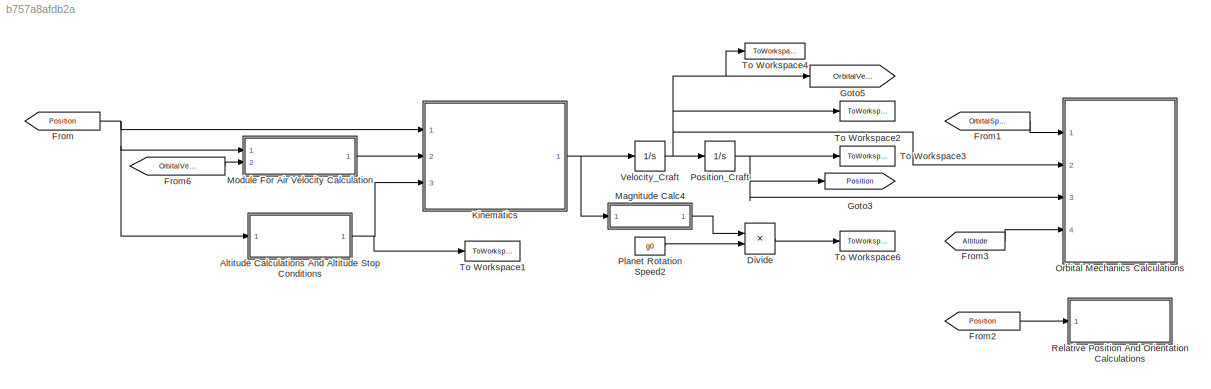
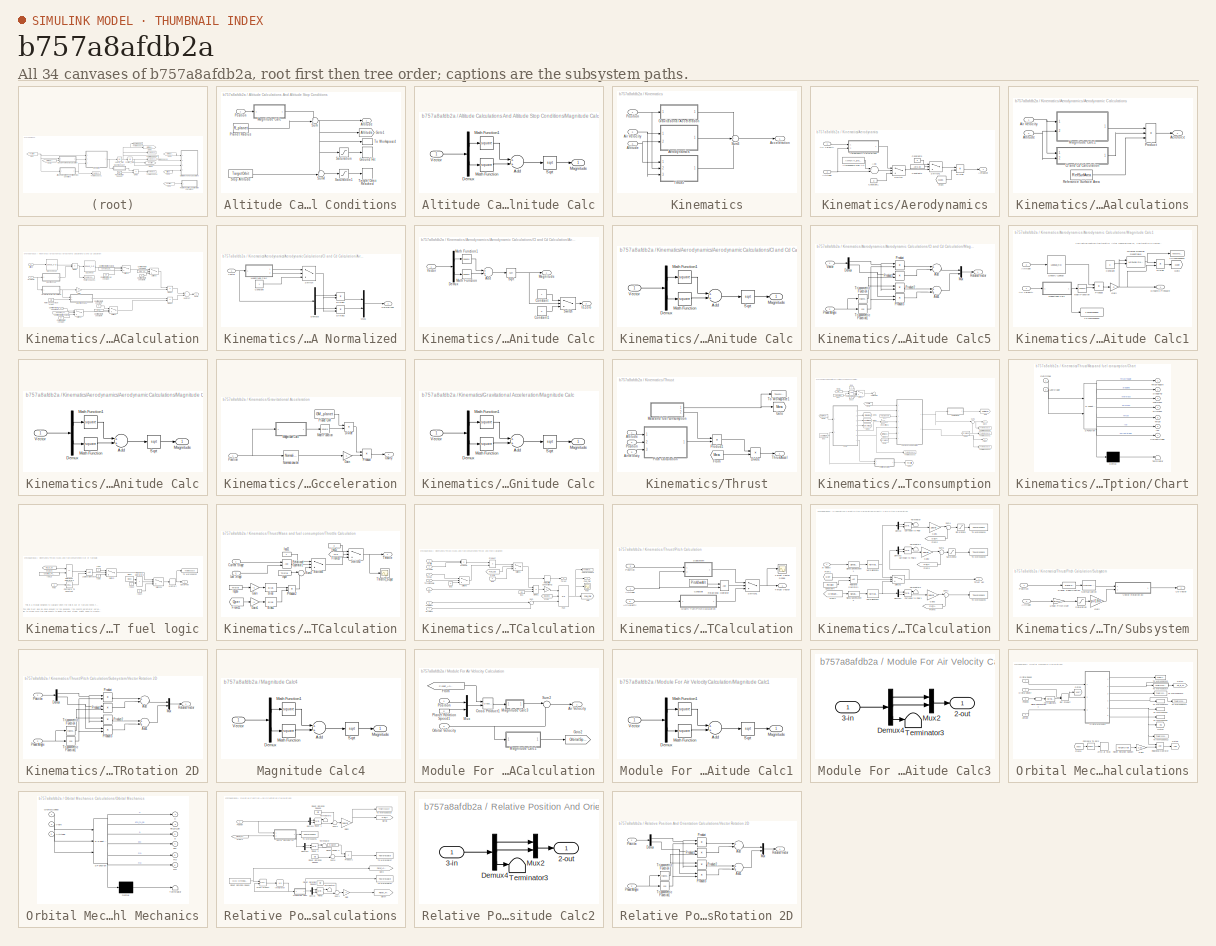
[diagram: thumbnail index - all 34 canvases of the model, root first then tree order]
MODEL slx_b757a8afdb2a
KIND model
CONFIG AbsTol = auto
CONFIG FixedStep = .1
CONFIG InitFcn = PlanetSelect;
CONFIG MaxStep = auto
CONFIG MinStep = auto
CONFIG RelTol = 1e-9
CONFIG SampleTimeConstraint = Unconstrained
CONFIG Solver = ode45
CONFIG SolverMode = Auto
CONFIG SolverName = ode45
CONFIG StartTime = 0.0
CONFIG StopFcn = TotalDeltaV
CONFIG StopTime = 1000
BLOCK [SubSystem] Altitude Calculations And Altitude Stop Conditions
  Ports = [1, 1]
  RequestExecContextInheritance = off
BLOCK [Stop] Altitude Calculations And Altitude Stop Conditions/ Target Orbit Reached
BLOCK [Outport] Altitude Calculations And Altitude Stop Conditions/Altitude
  IconDisplay = Port number
BLOCK [Goto] Altitude Calculations And Altitude Stop Conditions/Goto1
  GotoTag = Altitude
  TagVisibility = global
BLOCK [Stop] Altitude Calculations And Altitude Stop Conditions/Ground Hit
BLOCK [SubSystem] Altitude Calculations And Altitude Stop Conditions/Magnitude Calc
  Ports = [1, 1]
  RequestExecContextInheritance = off
BLOCK [Sum] Altitude Calculations And Altitude Stop Conditions/Magnitude Calc/Add
  InputSameDT = off
  OutDataTypeStr = Inherit: Inherit via internal rule
  Ports = [2, 1]
  SaturateOnIntegerOverflow = off
BLOCK [Demux] Altitude Calculations And Altitude Stop Conditions/Magnitude Calc/Demux
  DisplayOption = bar
  Outputs = 2
  Ports = [1, 2]
BLOCK [Outport] Altitude Calculations And Altitude Stop Conditions/Magnitude Calc/Magnitude 
  IconDisplay = Port number
BLOCK [Math] Altitude Calculations And Altitude Stop Conditions/Magnitude Calc/Math Function
  Operator = square
  Ports = [1, 1]
BLOCK [Math] Altitude Calculations And Altitude Stop Conditions/Magnitude Calc/Math Function1
  Operator = square
  Ports = [1, 1]
BLOCK [Sqrt] Altitude Calculations And Altitude Stop Conditions/Magnitude Calc/Sqrt
BLOCK [Inport] Altitude Calculations And Altitude Stop Conditions/Magnitude Calc/Vector
  IconDisplay = Port number
BLOCK [Constant] Altitude Calculations And Altitude Stop Conditions/Planet Radius 
  Value = R_planet
BLOCK [Inport] Altitude Calculations And Altitude Stop Conditions/Position
  IconDisplay = Port number
BLOCK [Saturate] Altitude Calculations And Altitude Stop Conditions/Saturation
  InputPortMap = u0
  Ports = [1, 1]
  UpperLimit = 0
BLOCK [Saturate] Altitude Calculations And Altitude Stop Conditions/Saturation1
  InputPortMap = u0
  LowerLimit = 0
  Ports = [1, 1]
  UpperLimit = 1
BLOCK [Constant] Altitude Calculations And Altitude Stop Conditions/Stop Altitude
  Value = TargetOrbit
BLOCK [Sum] Altitude Calculations And Altitude Stop Conditions/Sum
  IconShape = round
  InputSameDT = off
  Inputs = +-|
  OutDataTypeStr = Inherit: Inherit via internal rule
  Ports = [2, 1]
  SaturateOnIntegerOverflow = off
BLOCK [Sum] Altitude Calculations And Altitude Stop Conditions/Sum4
  IconShape = round
  InputSameDT = off
  Inputs = +-|
  OutDataTypeStr = Inherit: Inherit via internal rule
  Ports = [2, 1]
  SaturateOnIntegerOverflow = off
BLOCK [ToWorkspace] Altitude Calculations And Altitude Stop Conditions/To Workspace4
  FixptAsFi = on
  MaxDataPoints = inf
  Ports = [1]
  SampleTime = -1
  Save2DSignal = 3-D array (concatenate along third dimension)
  VariableName = Alt
BLOCK [Product] Divide
  InputSameDT = off
  Inputs = */
  OutDataTypeStr = Inherit: Inherit via internal rule
  Ports = [2, 1]
  RndMeth = Floor
  SaturateOnIntegerOverflow = off
BLOCK [From] From
  GotoTag = Position
BLOCK [From] From1
  GotoTag = OrbitalSpeed
  TagVisibility = global
BLOCK [From] From2
  GotoTag = Position
BLOCK [From] From3
  GotoTag = Altitude
  TagVisibility = global
BLOCK [From] From6
  GotoTag = OrbitalVelocity
  TagVisibility = global
BLOCK [Goto] Goto3
  GotoTag = Position
BLOCK [Goto] Goto5
  GotoTag = OrbitalVelocity
  TagVisibility = global
BLOCK [SubSystem] Kinematics
  Ports = [3, 1]
  RequestExecContextInheritance = off
BLOCK [Outport] Kinematics/Acceleration 
  IconDisplay = Port number
BLOCK [SubSystem] Kinematics/Aerodynamics
  Ports = [2, 1]
  RequestExecContextInheritance = off
BLOCK [Sum] Kinematics/Aerodynamics/Add
  InputSameDT = off
  Inputs = +-
  OutDataTypeStr = Inherit: Inherit via internal rule
  Ports = [2, 1]
  SaturateOnIntegerOverflow = off
BLOCK [Outport] Kinematics/Aerodynamics/Aeroaccel 
  IconDisplay = Port number
BLOCK [SubSystem] Kinematics/Aerodynamics/Aerodynamic Calculations
  Ports = [2, 1]
  RequestExecContextInheritance = off
BLOCK [Outport] Kinematics/Aerodynamics/Aerodynamic Calculations/Aeroforce 
  IconDisplay = Port number
BLOCK [Inport] Kinematics/Aerodynamics/Aerodynamic Calculations/Air Velocity
  IconDisplay = Port number
BLOCK [Inport] Kinematics/Aerodynamics/Aerodynamic Calculations/Altitude
  IconDisplay = Port number
  Port = 2
BLOCK [SubSystem] Kinematics/Aerodynamics/Aerodynamic Calculations/Cl and Cd Calculation
  Ports = [2, 1]
  RequestExecContextInheritance = off
BLOCK [Inport] Kinematics/Aerodynamics/Aerodynamic Calculations/Cl and Cd Calculation/Air Velocity
  IconDisplay = Port number
BLOCK [SubSystem] Kinematics/Aerodynamics/Aerodynamic Calculations/Cl and Cd Calculation/Air Velocity Vector Normalized
  Ports = [1, 1]
  RequestExecContextInheritance = off
BLOCK [Constant] Kinematics/Aerodynamics/Aerodynamic Calculations/Cl and Cd Calculation/Air Velocity Vector Normalized/Constant
BLOCK [Demux] Kinematics/Aerodynamics/Aerodynamic Calculations/Cl and Cd Calculation/Air Velocity Vector Normalized/Demux3
  DisplayOption = bar
  Outputs = 2
  Ports = [1, 2]
BLOCK [Product] Kinematics/Aerodynamics/Aerodynamic Calculations/Cl and Cd Calculation/Air Velocity Vector Normalized/Divide1
  InputSameDT = off
  Inputs = */
  OutDataTypeStr = Inherit: Inherit via internal rule
  Ports = [2, 1]
  RndMeth = Floor
  SaturateOnIntegerOverflow = off
BLOCK [Product] Kinematics/Aerodynamics/Aerodynamic Calculations/Cl and Cd Calculation/Air Velocity Vector Normalized/Divide2
  InputSameDT = off
  Inputs = */
  OutDataTypeStr = Inherit: Inherit via internal rule
  Ports = [2, 1]
  RndMeth = Floor
  SaturateOnIntegerOverflow = off
BLOCK [SubSystem] Kinematics/Aerodynamics/Aerodynamic Calculations/Cl and Cd Calculation/Air Velocity Vector Normalized/Magnitude Calc
  Ports = [1, 2]
  RequestExecContextInheritance = off
BLOCK [Sum] Kinematics/Aerodynamics/Aerodynamic Calculations/Cl and Cd Calculation/Air Velocity Vector Normalized/Magnitude Calc/Add
  InputSameDT = off
  OutDataTypeStr = Inherit: Inherit via internal rule
  Ports = [2, 1]
  SaturateOnIntegerOverflow = off
BLOCK [Constant] Kinematics/Aerodynamics/Aerodynamic Calculations/Cl and Cd Calculation/Air Velocity Vector Normalized/Magnitude Calc/Constant
BLOCK [Constant] Kinematics/Aerodynamics/Aerodynamic Calculations/Cl and Cd Calculation/Air Velocity Vector Normalized/Magnitude Calc/Constant1
  Value = 0
BLOCK [Demux] Kinematics/Aerodynamics/Aerodynamic Calculations/Cl and Cd Calculation/Air Velocity Vector Normalized/Magnitude Calc/Demux
  DisplayOption = bar
  Outputs = 2
  Ports = [1, 2]
BLOCK [Outport] Kinematics/Aerodynamics/Aerodynamic Calculations/Cl and Cd Calculation/Air Velocity Vector Normalized/Magnitude Calc/Is Zero
  IconDisplay = Port number
  Port = 2
BLOCK [Outport] Kinematics/Aerodynamics/Aerodynamic Calculations/Cl and Cd Calculation/Air Velocity Vector Normalized/Magnitude Calc/Magnitude 
  IconDisplay = Port number
BLOCK [Math] Kinematics/Aerodynamics/Aerodynamic Calculations/Cl and Cd Calculation/Air Velocity Vector Normalized/Magnitude Calc/Math Function
  Operator = square
  Ports = [1, 1]
BLOCK [Math] Kinematics/Aerodynamics/Aerodynamic Calculations/Cl and Cd Calculation/Air Velocity Vector Normalized/Magnitude Calc/Math Function1
  Operator = square
  Ports = [1, 1]
BLOCK [Sqrt] Kinematics/Aerodynamics/Aerodynamic Calculations/Cl and Cd Calculation/Air Velocity Vector Normalized/Magnitude Calc/Sqrt
BLOCK [Switch] Kinematics/Aerodynamics/Aerodynamic Calculations/Cl and Cd Calculation/Air Velocity Vector Normalized/Magnitude Calc/Switch
  Criteria = u2 ~= 0
  InputSameDT = off
  SaturateOnIntegerOverflow = off
BLOCK [Inport] Kinematics/Aerodynamics/Aerodynamic Calculations/Cl and Cd Calculation/Air Velocity Vector Normalized/Magnitude Calc/Vector
  IconDisplay = Port number
BLOCK [Mux] Kinematics/Aerodynamics/Aerodynamic Calculations/Cl and Cd Calculation/Air Velocity Vector Normalized/Mux1
  DisplayOption = bar
  Inputs = 2
  Ports = [2, 1]
BLOCK [Outport] Kinematics/Aerodynamics/Aerodynamic Calculations/Cl and Cd Calculation/Air Velocity Vector Normalized/Normalized 
  IconDisplay = Port number
BLOCK [Switch] Kinematics/Aerodynamics/Aerodynamic Calculations/Cl and Cd Calculation/Air Velocity Vector Normalized/Switch
  Criteria = u2 > Threshold
  InputSameDT = off
  SaturateOnIntegerOverflow = off
BLOCK [Inport] Kinematics/Aerodynamics/Aerodynamic Calculations/Cl and Cd Calculation/Air Velocity Vector Normalized/Vector
  IconDisplay = Port number
BLOCK [Inport] Kinematics/Aerodynamics/Aerodynamic Calculations/Cl and Cd Calculation/Altitude 
  IconDisplay = Port number
  Port = 2
BLOCK [Lookup_n-D] Kinematics/Aerodynamics/Aerodynamic Calculations/Cl and Cd Calculation/Cd Lookup
  BreakpointsForDimension1 = DragData(:,1)
  InternalRulePriority = Speed
  NumberOfTableDimensions = 1
  Ports = [1, 1]
  RndMeth = Simplest
  Table = DragData(:,2)
BLOCK [Outport] Kinematics/Aerodynamics/Aerodynamic Calculations/Cl and Cd Calculation/Cl + Cd
  IconDisplay = Port number
BLOCK [Constant] Kinematics/Aerodynamics/Aerodynamic Calculations/Cl and Cd Calculation/Coefficient of Drag constant
  Value = Cd
BLOCK [Constant] Kinematics/Aerodynamics/Aerodynamic Calculations/Cl and Cd Calculation/Coefficient of Lift constant
  Value = Cl
BLOCK [Constant] Kinematics/Aerodynamics/Aerodynamic Calculations/Cl and Cd Calculation/Coefficient of Lift constant1
  Value = 0
BLOCK [Constant] Kinematics/Aerodynamics/Aerodynamic Calculations/Cl and Cd Calculation/Coefficient of Lift constant2
  Value = Constant_Drag_On
BLOCK [Constant] Kinematics/Aerodynamics/Aerodynamic Calculations/Cl and Cd Calculation/Coefficient of Lift constant3
  Value = Drag_On
BLOCK [Constant] Kinematics/Aerodynamics/Aerodynamic Calculations/Cl and Cd Calculation/Coefficient of Lift constant4
  Value = Lift_On
BLOCK [Constant] Kinematics/Aerodynamics/Aerodynamic Calculations/Cl and Cd Calculation/Coefficient of Lift constant5
  Value = Constant_Lift_On
BLOCK [Constant] Kinematics/Aerodynamics/Aerodynamic Calculations/Cl and Cd Calculation/Coefficient of Lift constant6
  Value = 0
BLOCK [Constant] Kinematics/Aerodynamics/Aerodynamic Calculations/Cl and Cd Calculation/Coefficient of Lift constant7
  Value = 0
BLOCK [Product] Kinematics/Aerodynamics/Aerodynamic Calculations/Cl and Cd Calculation/Divide
  InputSameDT = off
  Inputs = /*
  OutDataTypeStr = Inherit: Inherit via internal rule
  Ports = [2, 1]
  RndMeth = Floor
  SaturateOnIntegerOverflow = off
BLOCK [Product] Kinematics/Aerodynamics/Aerodynamic Calculations/Cl and Cd Calculation/Divide1
  InputSameDT = off
  Inputs = **
  OutDataTypeStr = Inherit: Inherit via internal rule
  Ports = [2, 1]
  RndMeth = Floor
  SaturateOnIntegerOverflow = off
BLOCK [Product] Kinematics/Aerodynamics/Aerodynamic Calculations/Cl and Cd Calculation/Divide2
  InputSameDT = off
  Inputs = **
  OutDataTypeStr = Inherit: Inherit via internal rule
  Ports = [2, 1]
  RndMeth = Floor
  SaturateOnIntegerOverflow = off
BLOCK [Gain] Kinematics/Aerodynamics/Aerodynamic Calculations/Cl and Cd Calculation/Gain
  Gain = -1
  OutDataTypeStr = Inherit: Inherit via internal rule
  ParamDataTypeStr = Inherit: Inherit via internal rule
  SaturateOnIntegerOverflow = off
BLOCK [Lookup_n-D] Kinematics/Aerodynamics/Aerodynamic Calculations/Cl and Cd Calculation/Mach Lookup
  BreakpointsForDimension1 = AtmoData(:,1)
  InternalRulePriority = Speed
  NumberOfTableDimensions = 1
  Ports = [1, 1]
  RndMeth = Simplest
  Table = AtmoData(:,4)
BLOCK [SubSystem] Kinematics/Aerodynamics/Aerodynamic Calculations/Cl and Cd Calculation/Magnitude Calc
  Ports = [1, 1]
  RequestExecContextInheritance = off
BLOCK [Sum] Kinematics/Aerodynamics/Aerodynamic Calculations/Cl and Cd Calculation/Magnitude Calc/Add
  InputSameDT = off
  OutDataTypeStr = Inherit: Inherit via internal rule
  Ports = [2, 1]
  SaturateOnIntegerOverflow = off
BLOCK [Demux] Kinematics/Aerodynamics/Aerodynamic Calculations/Cl and Cd Calculation/Magnitude Calc/Demux
  DisplayOption = bar
  Outputs = 2
  Ports = [1, 2]
BLOCK [Outport] Kinematics/Aerodynamics/Aerodynamic Calculations/Cl and Cd Calculation/Magnitude Calc/Magnitude 
  IconDisplay = Port number
BLOCK [Math] Kinematics/Aerodynamics/Aerodynamic Calculations/Cl and Cd Calculation/Magnitude Calc/Math Function
  Operator = square
  Ports = [1, 1]
BLOCK [Math] Kinematics/Aerodynamics/Aerodynamic Calculations/Cl and Cd Calculation/Magnitude Calc/Math Function1
  Operator = square
  Ports = [1, 1]
BLOCK [Sqrt] Kinematics/Aerodynamics/Aerodynamic Calculations/Cl and Cd Calculation/Magnitude Calc/Sqrt
BLOCK [Inport] Kinematics/Aerodynamics/Aerodynamic Calculations/Cl and Cd Calculation/Magnitude Calc/Vector
  IconDisplay = Port number
BLOCK [SubSystem] Kinematics/Aerodynamics/Aerodynamic Calculations/Cl and Cd Calculation/Magnitude Calc5
  Ports = [2, 1]
  RequestExecContextInheritance = off
BLOCK [Sum] Kinematics/Aerodynamics/Aerodynamic Calculations/Cl and Cd Calculation/Magnitude Calc5/Add
  InputSameDT = off
  Inputs = +-
  OutDataTypeStr = Inherit: Inherit via internal rule
  Ports = [2, 1]
  SaturateOnIntegerOverflow = off
BLOCK [Sum] Kinematics/Aerodynamics/Aerodynamic Calculations/Cl and Cd Calculation/Magnitude Calc5/Add1
  InputSameDT = off
  OutDataTypeStr = Inherit: Inherit via internal rule
  Ports = [2, 1]
  SaturateOnIntegerOverflow = off
BLOCK [Demux] Kinematics/Aerodynamics/Aerodynamic Calculations/Cl and Cd Calculation/Magnitude Calc5/Demux
  DisplayOption = bar
  Outputs = 2
  Ports = [1, 2]
BLOCK [Mux] Kinematics/Aerodynamics/Aerodynamic Calculations/Cl and Cd Calculation/Magnitude Calc5/Mux
  DisplayOption = bar
  Inputs = 2
  Ports = [2, 1]
BLOCK [Inport] Kinematics/Aerodynamics/Aerodynamic Calculations/Cl and Cd Calculation/Magnitude Calc5/Phase Angle
  IconDisplay = Port number
  Port = 2
BLOCK [Product] Kinematics/Aerodynamics/Aerodynamic Calculations/Cl and Cd Calculation/Magnitude Calc5/Product
  InputSameDT = off
  OutDataTypeStr = Inherit: Inherit via internal rule
  Ports = [2, 1]
  RndMeth = Floor
  SaturateOnIntegerOverflow = off
BLOCK [Product] Kinematics/Aerodynamics/Aerodynamic Calculations/Cl and Cd Calculation/Magnitude Calc5/Product1
  InputSameDT = off
  OutDataTypeStr = Inherit: Inherit via internal rule
  Ports = [2, 1]
  RndMeth = Floor
  SaturateOnIntegerOverflow = off
BLOCK [Product] Kinematics/Aerodynamics/Aerodynamic Calculations/Cl and Cd Calculation/Magnitude Calc5/Product2
  InputSameDT = off
  OutDataTypeStr = Inherit: Inherit via internal rule
  Ports = [2, 1]
  RndMeth = Floor
  SaturateOnIntegerOverflow = off
BLOCK [Product] Kinematics/Aerodynamics/Aerodynamic Calculations/Cl and Cd Calculation/Magnitude Calc5/Product3
  InputSameDT = off
  OutDataTypeStr = Inherit: Inherit via internal rule
  Ports = [2, 1]
  RndMeth = Floor
  SaturateOnIntegerOverflow = off
BLOCK [Outport] Kinematics/Aerodynamics/Aerodynamic Calculations/Cl and Cd Calculation/Magnitude Calc5/Rotated Vector 
  IconDisplay = Port number
BLOCK [Trigonometry] Kinematics/Aerodynamics/Aerodynamic Calculations/Cl and Cd Calculation/Magnitude Calc5/Trigonometric Function
  Ports = [1, 1]
BLOCK [Trigonometry] Kinematics/Aerodynamics/Aerodynamic Calculations/Cl and Cd Calculation/Magnitude Calc5/Trigonometric Function1
  Operator = cos
  Ports = [1, 1]
BLOCK [Inport] Kinematics/Aerodynamics/Aerodynamic Calculations/Cl and Cd Calculation/Magnitude Calc5/Vector
  IconDisplay = Port number
BLOCK [Constant] Kinematics/Aerodynamics/Aerodynamic Calculations/Cl and Cd Calculation/Referance Surface Area1
  Value = pi/2
BLOCK [Sum] Kinematics/Aerodynamics/Aerodynamic Calculations/Cl and Cd Calculation/Subtract
  InputSameDT = off
  OutDataTypeStr = Inherit: Inherit via internal rule
  Ports = [2, 1]
  SaturateOnIntegerOverflow = off
BLOCK [Switch] Kinematics/Aerodynamics/Aerodynamic Calculations/Cl and Cd Calculation/Switch1
  Criteria = u2 ~= 0
  InputSameDT = off
  SaturateOnIntegerOverflow = off
BLOCK [Switch] Kinematics/Aerodynamics/Aerodynamic Calculations/Cl and Cd Calculation/Switch2
  Criteria = u2 ~= 0
  InputSameDT = off
  SaturateOnIntegerOverflow = off
BLOCK [Switch] Kinematics/Aerodynamics/Aerodynamic Calculations/Cl and Cd Calculation/Switch3
  Criteria = u2 ~= 0
  InputSameDT = off
  SaturateOnIntegerOverflow = off
BLOCK [Switch] Kinematics/Aerodynamics/Aerodynamic Calculations/Cl and Cd Calculation/Switch4
  Criteria = u2 ~= 0
  InputSameDT = off
  SaturateOnIntegerOverflow = off
BLOCK [ToWorkspace] Kinematics/Aerodynamics/Aerodynamic Calculations/Cl and Cd Calculation/To Workspace1
  FixptAsFi = on
  MaxDataPoints = inf
  Ports = [1]
  SampleTime = -1
  Save2DSignal = 3-D array (concatenate along third dimension)
  VariableName = Mach
BLOCK [SubSystem] Kinematics/Aerodynamics/Aerodynamic Calculations/Magnitude Calc1
  Ports = [2, 1]
  RequestExecContextInheritance = off
BLOCK [Inport] Kinematics/Aerodynamics/Aerodynamic Calculations/Magnitude Calc1/Air Velocity
  IconDisplay = Port number
BLOCK [Inport] Kinematics/Aerodynamics/Aerodynamic Calculations/Magnitude Calc1/Altitude 
  IconDisplay = Port number
  Port = 2
BLOCK [Constant] Kinematics/Aerodynamics/Aerodynamic Calculations/Magnitude Calc1/Constant
  Value = 0
BLOCK [Lookup_n-D] Kinematics/Aerodynamics/Aerodynamic Calculations/Magnitude Calc1/Density Lookup
  BreakpointsForDimension1 = AtmoData(:,1)
  InternalRulePriority = Speed
  NumberOfTableDimensions = 1
  Ports = [1, 1]
  RndMeth = Simplest
  Table = AtmoData(:,3)
BLOCK [Product] Kinematics/Aerodynamics/Aerodynamic Calculations/Magnitude Calc1/Divide
  InputSameDT = off
  Inputs = /*
  OutDataTypeStr = Inherit: Inherit via internal rule
  Ports = [2, 1]
  RndMeth = Floor
  SaturateOnIntegerOverflow = off
BLOCK [Outport] Kinematics/Aerodynamics/Aerodynamic Calculations/Magnitude Calc1/Dynamic Pressure 
  IconDisplay = Port number
BLOCK [Gain] Kinematics/Aerodynamics/Aerodynamic Calculations/Magnitude Calc1/Gain
  Gain = .5
  OutDataTypeStr = Inherit: Inherit via internal rule
  ParamDataTypeStr = Inherit: Inherit via internal rule
  SaturateOnIntegerOverflow = off
BLOCK [Goto] Kinematics/Aerodynamics/Aerodynamic Calculations/Magnitude Calc1/Goto
  GotoTag = Qper
  TagVisibility = global
BLOCK [SubSystem] Kinematics/Aerodynamics/Aerodynamic Calculations/Magnitude Calc1/Magnitude Calc
  Ports = [1, 1]
  RequestExecContextInheritance = off
BLOCK [Sum] Kinematics/Aerodynamics/Aerodynamic Calculations/Magnitude Calc1/Magnitude Calc/Add
  InputSameDT = off
  OutDataTypeStr = Inherit: Inherit via internal rule
  Ports = [2, 1]
  SaturateOnIntegerOverflow = off
BLOCK [Demux] Kinematics/Aerodynamics/Aerodynamic Calculations/Magnitude Calc1/Magnitude Calc/Demux
  DisplayOption = bar
  Outputs = 2
  Ports = [1, 2]
BLOCK [Outport] Kinematics/Aerodynamics/Aerodynamic Calculations/Magnitude Calc1/Magnitude Calc/Magnitude 
  IconDisplay = Port number
BLOCK [Math] Kinematics/Aerodynamics/Aerodynamic Calculations/Magnitude Calc1/Magnitude Calc/Math Function
  Operator = square
  Ports = [1, 1]
BLOCK [Math] Kinematics/Aerodynamics/Aerodynamic Calculations/Magnitude Calc1/Magnitude Calc/Math Function1
  Operator = square
  Ports = [1, 1]
BLOCK [Sqrt] Kinematics/Aerodynamics/Aerodynamic Calculations/Magnitude Calc1/Magnitude Calc/Sqrt
BLOCK [Inport] Kinematics/Aerodynamics/Aerodynamic Calculations/Magnitude Calc1/Magnitude Calc/Vector
  IconDisplay = Port number
BLOCK [Math] Kinematics/Aerodynamics/Aerodynamic Calculations/Magnitude Calc1/Math Function
  Operator = square
  Ports = [1, 1]
BLOCK [Reference] Kinematics/Aerodynamics/Aerodynamic Calculations/Magnitude Calc1/MinMax Running Resettable  REF=simulink/Math
Operations/MinMax
Running
Resettable
  Function = max
  Ports = [2, 1]
  SourceBlock = simulink/Math\nOperations/MinMax\nRunning\nResettable
  SourceType = MinMax Running Resettable
  vinit = 0.0
BLOCK [Product] Kinematics/Aerodynamics/Aerodynamic Calculations/Magnitude Calc1/Product
  InputSameDT = off
  OutDataTypeStr = Inherit: Inherit via internal rule
  Ports = [2, 1]
  RndMeth = Floor
  SaturateOnIntegerOverflow = off
BLOCK [ToWorkspace] Kinematics/Aerodynamics/Aerodynamic Calculations/Magnitude Calc1/To Workspace1
  FixptAsFi = on
  MaxDataPoints = 1
  Ports = [1]
  SampleTime = -1
  Save2DSignal = 3-D array (concatenate along third dimension)
  VariableName = MaxQ
BLOCK [ToWorkspace] Kinematics/Aerodynamics/Aerodynamic Calculations/Magnitude Calc1/To Workspace2
  FixptAsFi = on
  MaxDataPoints = inf
  Ports = [1]
  SampleTime = -1
  Save2DSignal = 3-D array (concatenate along third dimension)
  VariableName = Airspeed
BLOCK [Product] Kinematics/Aerodynamics/Aerodynamic Calculations/Product
  InputSameDT = off
  Inputs = 3
  OutDataTypeStr = Inherit: Inherit via internal rule
  Ports = [3, 1]
  RndMeth = Floor
  SaturateOnIntegerOverflow = off
BLOCK [Constant] Kinematics/Aerodynamics/Aerodynamic Calculations/Referance Surface Area
  Value = RefSurfArea
BLOCK [Inport] Kinematics/Aerodynamics/Air Velocity
  IconDisplay = Port number
BLOCK [Inport] Kinematics/Aerodynamics/Altitude 
  IconDisplay = Port number
  Port = 2
BLOCK [Constant] Kinematics/Aerodynamics/Atmosphere Max Alt
  Value = AtmoAlt_planet
BLOCK [Constant] Kinematics/Aerodynamics/Constant1
  Value = 0
BLOCK [Constant] Kinematics/Aerodynamics/Constant2
  Value = Aero_On
BLOCK [Constant] Kinematics/Aerodynamics/Constant3
  Value = 0
BLOCK [Product] Kinematics/Aerodynamics/Divide
  InputSameDT = off
  Inputs = */
  OutDataTypeStr = Inherit: Inherit via internal rule
  Ports = [2, 1]
  RndMeth = Floor
  SaturateOnIntegerOverflow = off
BLOCK [From] Kinematics/Aerodynamics/From
  GotoTag = Mass
  TagVisibility = global
BLOCK [Switch] Kinematics/Aerodynamics/Switch
  Criteria = u2 > Threshold
  InputSameDT = off
  SaturateOnIntegerOverflow = off
BLOCK [Switch] Kinematics/Aerodynamics/Switch1
  Criteria = u2 ~= 0
  InputSameDT = off
  SaturateOnIntegerOverflow = off
BLOCK [Inport] Kinematics/Air Velocity
  IconDisplay = Port number
  Port = 2
BLOCK [Inport] Kinematics/Altitude 
  IconDisplay = Port number
  Port = 3
BLOCK [SubSystem] Kinematics/Gravitational Acceleration
  Ports = [1, 1]
  RequestExecContextInheritance = off
BLOCK [Product] Kinematics/Gravitational Acceleration/Divide
  InputSameDT = off
  Inputs = */
  OutDataTypeStr = Inherit: Inherit via internal rule
  Ports = [2, 1]
  RndMeth = Floor
  SaturateOnIntegerOverflow = off
BLOCK [Gain] Kinematics/Gravitational Acceleration/Gain
  Gain = -1
  OutDataTypeStr = Inherit: Inherit via internal rule
  ParamDataTypeStr = Inherit: Inherit via internal rule
  SaturateOnIntegerOverflow = off
BLOCK [Outport] Kinematics/Gravitational Acceleration/Gavity 
  IconDisplay = Port number
BLOCK [SubSystem] Kinematics/Gravitational Acceleration/Magnitude Calc
  Ports = [1, 1]
  RequestExecContextInheritance = off
BLOCK [Sum] Kinematics/Gravitational Acceleration/Magnitude Calc/Add
  InputSameDT = off
  OutDataTypeStr = Inherit: Inherit via internal rule
  Ports = [2, 1]
  SaturateOnIntegerOverflow = off
BLOCK [Demux] Kinematics/Gravitational Acceleration/Magnitude Calc/Demux
  DisplayOption = bar
  Outputs = 2
  Ports = [1, 2]
BLOCK [Outport] Kinematics/Gravitational Acceleration/Magnitude Calc/Magnitude 
  IconDisplay = Port number
BLOCK [Math] Kinematics/Gravitational Acceleration/Magnitude Calc/Math Function
  Operator = square
  Ports = [1, 1]
BLOCK [Math] Kinematics/Gravitational Acceleration/Magnitude Calc/Math Function1
  Operator = square
  Ports = [1, 1]
BLOCK [Sqrt] Kinematics/Gravitational Acceleration/Magnitude Calc/Sqrt
BLOCK [Inport] Kinematics/Gravitational Acceleration/Magnitude Calc/Vector
  IconDisplay = Port number
BLOCK [Math] Kinematics/Gravitational Acceleration/Math Function
  Operator = square
  Ports = [1, 1]
BLOCK [Reference] Kinematics/Gravitational Acceleration/Normalization  REF=dspmathops/Normalization
  Bias = 1e-10
  ColComp = off
  Dimension = 1
  LockScale = off
  NormOver = Specified dimension
  NormType = 2-norm
  Ports = [1, 1]
  SourceBlock = dspmathops/Normalization
  SourceType = Normalization
  accumDataTypeStr = Inherit: Same as product output
  accumFracLength = 30
  accumLastDataTypeStr = Inherit: Same as product output
  accumMode = Same as product output
  accumWordLength = 32
  additionalParams = off
  allowOverrides = on
  outputDataTypeStr = Inherit: Same as product output
  outputFracLength = 32
  outputLastDataTypeStr = Inherit: Same as product output
  outputMax = []
  outputMin = []
  outputMode = Same as product output
  outputWordLength = 32
  overflowMode = off
  prodOutputDataTypeStr = Inherit: Same as input
  prodOutputFracLength = 32
  prodOutputLastDataTypeStr = Inherit: Same as input
  prodOutputMode = Same as input
  prodOutputWordLength = 32
  roundingMode = Floor
BLOCK [Constant] Kinematics/Gravitational Acceleration/Planet GM
  Value = GM_planet
BLOCK [Inport] Kinematics/Gravitational Acceleration/Position
  IconDisplay = Port number
BLOCK [Product] Kinematics/Gravitational Acceleration/Product
  InputSameDT = off
  OutDataTypeStr = Inherit: Inherit via internal rule
  Ports = [2, 1]
  RndMeth = Floor
  SaturateOnIntegerOverflow = off
BLOCK [Inport] Kinematics/Position
  IconDisplay = Port number
BLOCK [Sum] Kinematics/Sum3
  IconShape = round
  InputSameDT = off
  Inputs = +++
  OutDataTypeStr = Inherit: Inherit via internal rule
  Ports = [3, 1]
  SaturateOnIntegerOverflow = off
BLOCK [SubSystem] Kinematics/Thrust
  Ports = [3, 1]
  RequestExecContextInheritance = off
BLOCK [Inport] Kinematics/Thrust/AirVelocity
  IconDisplay = Port number
  Port = 3
BLOCK [Inport] Kinematics/Thrust/Altitude
  IconDisplay = Port number
BLOCK [Product] Kinematics/Thrust/Divide
  InputSameDT = off
  Inputs = */
  OutDataTypeStr = Inherit: Inherit via internal rule
  Ports = [2, 1]
  RndMeth = Floor
  SaturateOnIntegerOverflow = off
BLOCK [From] Kinematics/Thrust/From
  GotoTag = Mass
  TagVisibility = global
BLOCK [Goto] Kinematics/Thrust/Goto
  GotoTag = Mass
  TagVisibility = global
BLOCK [SubSystem] Kinematics/Thrust/Mass and fuel consumption
  Ports = [0, 2]
  RequestExecContextInheritance = off
BLOCK [SubSystem] Kinematics/Thrust/Mass and fuel consumption/Chart
  ErrorFcn = Stateflow.Translate.translate
  PermitHierarchicalResolution = ExplicitOnly
  Ports = [2, 7]
  RequestExecContextInheritance = off
  SFBlockType = Chart
  TreatAsAtomicUnit = on
BLOCK [Demux] Kinematics/Thrust/Mass and fuel consumption/Chart/ Demux 
  Outputs = 1
  Ports = [1, 1]
BLOCK [S-Function] Kinematics/Thrust/Mass and fuel consumption/Chart/ SFunction 
  EnableBusSupport = on
  FunctionName = sf_sfun
  Parameters = ThrustMassData
  PortCounts = [2 8]
  Ports = [2, 8]
  Tag = Stateflow S-Function NewOrbitSimulation 3
BLOCK [Terminator] Kinematics/Thrust/Mass and fuel consumption/Chart/ Terminator 
BLOCK [Outport] Kinematics/Thrust/Mass and fuel consumption/Chart/CurrentStage
  IconDisplay = Port number
  Port = 7
BLOCK [Outport] Kinematics/Thrust/Mass and fuel consumption/Chart/DryMass
  IconDisplay = Port number
  Port = 4
BLOCK [Outport] Kinematics/Thrust/Mass and fuel consumption/Chart/Isp
  IconDisplay = Port number
  Port = 6
BLOCK [Inport] Kinematics/Thrust/Mass and fuel consumption/Chart/LastStage
  IconDisplay = Port number
  Port = 2
BLOCK [Inport] Kinematics/Thrust/Mass and fuel consumption/Chart/OutOfFuel
  IconDisplay = Port number
BLOCK [Outport] Kinematics/Thrust/Mass and fuel consumption/Chart/Stagging
  IconDisplay = Port number
  Port = 2
BLOCK [Outport] Kinematics/Thrust/Mass and fuel consumption/Chart/Thrust
  IconDisplay = Port number
  Port = 5
BLOCK [Outport] Kinematics/Thrust/Mass and fuel consumption/Chart/ThrustToggle
  IconDisplay = Port number
BLOCK [Outport] Kinematics/Thrust/Mass and fuel consumption/Chart/WetMass
  IconDisplay = Port number
  Port = 3
BLOCK [Gain] Kinematics/Thrust/Mass and fuel consumption/Convert to kN
  Gain = 1000
  OutDataTypeStr = Inherit: Inherit via internal rule
  ParamDataTypeStr = Inherit: Inherit via internal rule
  SaturateOnIntegerOverflow = off
BLOCK [From] Kinematics/Thrust/Mass and fuel consumption/From
  GotoTag = WetMass
BLOCK [From] Kinematics/Thrust/Mass and fuel consumption/From1
  GotoTag = DryMass
BLOCK [From] Kinematics/Thrust/Mass and fuel consumption/From3
  GotoTag = OutOfFuel
BLOCK [From] Kinematics/Thrust/Mass and fuel consumption/From4
  GotoTag = DryMass
BLOCK [From] Kinematics/Thrust/Mass and fuel consumption/From6
  GotoTag = Ra
  TagVisibility = global
BLOCK [From] Kinematics/Thrust/Mass and fuel consumption/From8
  GotoTag = Throttle
BLOCK [Goto] Kinematics/Thrust/Mass and fuel consumption/Goto
  GotoTag = OutOfFuel
BLOCK [Goto] Kinematics/Thrust/Mass and fuel consumption/Goto1
  GotoTag = WetMass
BLOCK [Goto] Kinematics/Thrust/Mass and fuel consumption/Goto2
  GotoTag = DryMass
BLOCK [Goto] Kinematics/Thrust/Mass and fuel consumption/Goto5
  GotoTag = Stagging
  TagVisibility = global
BLOCK [Goto] Kinematics/Thrust/Mass and fuel consumption/Goto6
  GotoTag = Throttle
BLOCK [Constant] Kinematics/Thrust/Mass and fuel consumption/Isp10
BLOCK [Constant] Kinematics/Thrust/Mass and fuel consumption/Isp17
  Value = ThrustEnable
BLOCK [Constant] Kinematics/Thrust/Mass and fuel consumption/Isp3
  Value = LastStage
BLOCK [Constant] Kinematics/Thrust/Mass and fuel consumption/Isp7
  Value = TargetOrbit/2
BLOCK [Constant] Kinematics/Thrust/Mass and fuel consumption/Isp8
BLOCK [Outport] Kinematics/Thrust/Mass and fuel consumption/Mass 
  IconDisplay = Port number
BLOCK [SubSystem] Kinematics/Thrust/Mass and fuel consumption/Out of fuel logic
  Ports = [1, 1]
  RequestExecContextInheritance = off
BLOCK [Clock] Kinematics/Thrust/Mass and fuel consumption/Out of fuel logic/Clock
  DisplayTime = on
BLOCK [Reference] Kinematics/Thrust/Mass and fuel consumption/Out of fuel logic/Compare To Constant  REF=simulink/Logic and Bit
Operations/Compare
To Constant
  OutDataTypeStr = boolean
  Ports = [1, 1]
  SourceBlock = simulink/Logic and Bit\nOperations/Compare\nTo Constant
  SourceType = Compare To Constant
  ZeroCross = on
  const = 1
  relop = <=
BLOCK [From] Kinematics/Thrust/Mass and fuel consumption/Out of fuel logic/From9
  GotoTag = eta_to_ap
  TagVisibility = global
BLOCK [Inport] Kinematics/Thrust/Mass and fuel consumption/Out of fuel logic/Fuel
  IconDisplay = Port number
BLOCK [Constant] Kinematics/Thrust/Mass and fuel consumption/Out of fuel logic/Isp12
BLOCK [Constant] Kinematics/Thrust/Mass and fuel consumption/Out of fuel logic/Isp13
  Value = Coasting_Parameter
BLOCK [Constant] Kinematics/Thrust/Mass and fuel consumption/Out of fuel logic/Isp14
  Value = 0
BLOCK [Constant] Kinematics/Thrust/Mass and fuel consumption/Out of fuel logic/Isp4
BLOCK [Constant] Kinematics/Thrust/Mass and fuel consumption/Out of fuel logic/Isp5
  Value = 0
BLOCK [Logic] Kinematics/Thrust/Mass and fuel consumption/Out of fuel logic/Logical Operator
  AllPortsSameDT = off
  OutDataTypeStr = boolean
  Ports = [2, 1]
BLOCK [Memory] Kinematics/Thrust/Mass and fuel consumption/Out of fuel logic/Memory
BLOCK [Outport] Kinematics/Thrust/Mass and fuel consumption/Out of fuel logic/OutOfFuel
  IconDisplay = Port number
BLOCK [RelationalOperator] Kinematics/Thrust/Mass and fuel consumption/Out of fuel logic/Relational Operator2
  InputSameDT = off
  Operator = >
  OutDataTypeStr = boolean
  Ports = [2, 1]
BLOCK [RelationalOperator] Kinematics/Thrust/Mass and fuel consumption/Out of fuel logic/Relational Operator3
  InputSameDT = off
  Operator = <=
  OutDataTypeStr = boolean
  Ports = [2, 1]
BLOCK [Switch] Kinematics/Thrust/Mass and fuel consumption/Out of fuel logic/Switch
  Criteria = u2 ~= 0
  InputSameDT = off
  SaturateOnIntegerOverflow = off
BLOCK [Switch] Kinematics/Thrust/Mass and fuel consumption/Out of fuel logic/Switch4
  Criteria = u2 ~= 0
  InputSameDT = off
  SaturateOnIntegerOverflow = off
BLOCK [ToWorkspace] Kinematics/Thrust/Mass and fuel consumption/Out of fuel logic/To Workspace2
  FixptAsFi = on
  MaxDataPoints = 1
  Ports = [1]
  SampleTime = -1
  Save2DSignal = 3-D array (concatenate along third dimension)
  VariableName = Debug_Checking
BLOCK [RelationalOperator] Kinematics/Thrust/Mass and fuel consumption/Relational Operator
  InputSameDT = off
  OutDataTypeStr = boolean
  Ports = [2, 1]
BLOCK [Sum] Kinematics/Thrust/Mass and fuel consumption/Sum1
  IconShape = round
  InputSameDT = off
  Inputs = |++
  OutDataTypeStr = Inherit: Inherit via internal rule
  Ports = [2, 1]
  SaturateOnIntegerOverflow = off
BLOCK [Switch] Kinematics/Thrust/Mass and fuel consumption/Switch2
  Criteria = u2 > Threshold
  InputSameDT = off
  SaturateOnIntegerOverflow = off
BLOCK [Terminator] Kinematics/Thrust/Mass and fuel consumption/Terminator1
BLOCK [SubSystem] Kinematics/Thrust/Mass and fuel consumption/Throttle Calculation
  Ports = [2, 1]
  RequestExecContextInheritance = off
BLOCK [Bias] Kinematics/Thrust/Mass and fuel consumption/Throttle Calculation/Bias
  Bias = 1
  SaturateOnIntegerOverflow = off
BLOCK [Bias] Kinematics/Thrust/Mass and fuel consumption/Throttle Calculation/Bias1
  Bias = +1
  SaturateOnIntegerOverflow = off
BLOCK [Inport] Kinematics/Thrust/Mass and fuel consumption/Throttle Calculation/Current Stage
  IconDisplay = Port number
BLOCK [From] Kinematics/Thrust/Mass and fuel consumption/Throttle Calculation/From10
  GotoTag = TOR
  TagVisibility = global
BLOCK [From] Kinematics/Thrust/Mass and fuel consumption/Throttle Calculation/From11
  GotoTag = Qper
  TagVisibility = global
BLOCK [Gain] Kinematics/Thrust/Mass and fuel consumption/Throttle Calculation/Gain
  Gain = -1
  OutDataTypeStr = Inherit: Inherit via internal rule
  ParamDataTypeStr = Inherit: Inherit via internal rule
  SaturateOnIntegerOverflow = off
BLOCK [Gain] Kinematics/Thrust/Mass and fuel consumption/Throttle Calculation/Gain1
  Gain = -1
  OutDataTypeStr = Inherit: Inherit via internal rule
  ParamDataTypeStr = Inherit: Inherit via internal rule
  SaturateOnIntegerOverflow = off
BLOCK [Constant] Kinematics/Thrust/Mass and fuel consumption/Throttle Calculation/Isp11
BLOCK [Constant] Kinematics/Thrust/Mass and fuel consumption/Throttle Calculation/Isp15
  Value = 0
BLOCK [Constant] Kinematics/Thrust/Mass and fuel consumption/Throttle Calculation/Isp16
  Value = Throttle
BLOCK [Constant] Kinematics/Thrust/Mass and fuel consumption/Throttle Calculation/Isp9
  Value = Throttle
BLOCK [Inport] Kinematics/Thrust/Mass and fuel consumption/Throttle Calculation/Last Stage
  IconDisplay = Port number
  Port = 2
BLOCK [Product] Kinematics/Thrust/Mass and fuel consumption/Throttle Calculation/Product2
  InputSameDT = off
  OutDataTypeStr = Inherit: Inherit via internal rule
  Ports = [2, 1]
  RndMeth = Floor
  SaturateOnIntegerOverflow = off
BLOCK [RelationalOperator] Kinematics/Thrust/Mass and fuel consumption/Throttle Calculation/Relational Operator1
  InputSameDT = off
  OutDataTypeStr = boolean
  Ports = [2, 1]
BLOCK [Sum] Kinematics/Thrust/Mass and fuel consumption/Throttle Calculation/Sum2
  IconShape = round
  InputSameDT = off
  Inputs = |++
  OutDataTypeStr = Inherit: Inherit via internal rule
  Ports = [2, 1]
  SaturateOnIntegerOverflow = off
BLOCK [Switch] Kinematics/Thrust/Mass and fuel consumption/Throttle Calculation/Switch3
  Criteria = u2 > Threshold
  InputSameDT = off
  SaturateOnIntegerOverflow = off
BLOCK [Switch] Kinematics/Thrust/Mass and fuel consumption/Throttle Calculation/Switch5
  Criteria = u2 > Threshold
  InputSameDT = off
  SaturateOnIntegerOverflow = off
BLOCK [Outport] Kinematics/Thrust/Mass and fuel consumption/Throttle Calculation/Throttle
  IconDisplay = Port number
BLOCK [Scope] Kinematics/Thrust/Mass and fuel consumption/Throttle Calculation/Throttle_Scope
  Floating = off
  NumInputPorts = 1
  Ports = [1]
  SaveName = ScopeData2
BLOCK [Outport] Kinematics/Thrust/Mass and fuel consumption/Thrust 
  IconDisplay = Port number
  Port = 2
BLOCK [SubSystem] Kinematics/Thrust/Mass and fuel consumption/Thrust and Fuel Calculation
  Ports = [7, 2]
  RequestExecContextInheritance = off
BLOCK [Gain] Kinematics/Thrust/Mass and fuel consumption/Thrust and Fuel Calculation/Convert to kN2
  Gain = -1
  OutDataTypeStr = Inherit: Inherit via internal rule
  ParamDataTypeStr = Inherit: Inherit via internal rule
  SaturateOnIntegerOverflow = off
BLOCK [Product] Kinematics/Thrust/Mass and fuel consumption/Thrust and Fuel Calculation/Divide1
  InputSameDT = off
  Inputs = *//
  OutDataTypeStr = Inherit: Inherit via internal rule
  Ports = [3, 1]
  RndMeth = Floor
  SaturateOnIntegerOverflow = off
BLOCK [Inport] Kinematics/Thrust/Mass and fuel consumption/Thrust and Fuel Calculation/Dry Mass
  IconDisplay = Port number
  Port = 7
BLOCK [From] Kinematics/Thrust/Mass and fuel consumption/Thrust and Fuel Calculation/From
  GotoTag = Stagging
  TagVisibility = global
BLOCK [From] Kinematics/Thrust/Mass and fuel consumption/Thrust and Fuel Calculation/From5
  GotoTag = Fuel_Calc
BLOCK [Integrator] Kinematics/Thrust/Mass and fuel consumption/Thrust and Fuel Calculation/Fuel
  ExternalReset = rising
  InitialConditionSource = external
  LimitOutput = on
  LowerSaturationLimit = 0
  Ports = [3, 1]
BLOCK [Scope] Kinematics/Thrust/Mass and fuel consumption/Thrust and Fuel Calculation/Fuel 
  Floating = off
  NumInputPorts = 1
  Ports = [1]
  SaveName = ScopeData4
BLOCK [Outport] Kinematics/Thrust/Mass and fuel consumption/Thrust and Fuel Calculation/Fuel_Calc
  IconDisplay = Port number
BLOCK [Goto] Kinematics/Thrust/Mass and fuel consumption/Thrust and Fuel Calculation/Goto
  GotoTag = Fuel_Calc
BLOCK [Inport] Kinematics/Thrust/Mass and fuel consumption/Thrust and Fuel Calculation/Isp
  IconDisplay = Port number
  Port = 5
BLOCK [Constant] Kinematics/Thrust/Mass and fuel consumption/Thrust and Fuel Calculation/Isp1
  Value = g0
BLOCK [Constant] Kinematics/Thrust/Mass and fuel consumption/Thrust and Fuel Calculation/Isp2
  Value = 0
BLOCK [Constant] Kinematics/Thrust/Mass and fuel consumption/Thrust and Fuel Calculation/Isp6
  Value = 0
BLOCK [Product] Kinematics/Thrust/Mass and fuel consumption/Thrust and Fuel Calculation/Product
  InputSameDT = off
  OutDataTypeStr = Inherit: Inherit via internal rule
  Ports = [2, 1]
  RndMeth = Floor
  SaturateOnIntegerOverflow = off
BLOCK [Product] Kinematics/Thrust/Mass and fuel consumption/Thrust and Fuel Calculation/Product1
  InputSameDT = off
  OutDataTypeStr = Inherit: Inherit via internal rule
  Ports = [2, 1]
  RndMeth = Floor
  SaturateOnIntegerOverflow = off
BLOCK [RateLimiter] Kinematics/Thrust/Mass and fuel consumption/Thrust and Fuel Calculation/Rate Limiter
  FallingSlewLimit = -100000
  RisingSlewLimit = 100000
  SampleTimeMode = inherited
BLOCK [Sum] Kinematics/Thrust/Mass and fuel consumption/Thrust and Fuel Calculation/Sum
  IconShape = round
  InputSameDT = off
  Inputs = |+-
  OutDataTypeStr = Inherit: Inherit via internal rule
  Ports = [2, 1]
  SaturateOnIntegerOverflow = off
BLOCK [Switch] Kinematics/Thrust/Mass and fuel consumption/Thrust and Fuel Calculation/Switch1
  Criteria = u2 > Threshold
  InputSameDT = off
  SaturateOnIntegerOverflow = off
BLOCK [Switch] Kinematics/Thrust/Mass and fuel consumption/Thrust and Fuel Calculation/Switch6
  Criteria = u2 > Threshold
  InputSameDT = off
  SaturateOnIntegerOverflow = off
BLOCK [Inport] Kinematics/Thrust/Mass and fuel consumption/Thrust and Fuel Calculation/Throttle
  IconDisplay = Port number
BLOCK [Inport] Kinematics/Thrust/Mass and fuel consumption/Thrust and Fuel Calculation/Thrust
  IconDisplay = Port number
  Port = 4
BLOCK [Outport] Kinematics/Thrust/Mass and fuel consumption/Thrust and Fuel Calculation/Thrust 
  IconDisplay = Port number
  Port = 2
BLOCK [Inport] Kinematics/Thrust/Mass and fuel consumption/Thrust and Fuel Calculation/ThrustEnable
  IconDisplay = Port number
  Port = 3
BLOCK [Inport] Kinematics/Thrust/Mass and fuel consumption/Thrust and Fuel Calculation/ThrustOn
  IconDisplay = Port number
  Port = 2
BLOCK [ToWorkspace] Kinematics/Thrust/Mass and fuel consumption/Thrust and Fuel Calculation/To Workspace
  FixptAsFi = on
  MaxDataPoints = 1
  Ports = [1]
  SampleTime = -1
  Save2DSignal = 3-D array (concatenate along third dimension)
  VariableName = Fuel_check
BLOCK [Inport] Kinematics/Thrust/Mass and fuel consumption/Thrust and Fuel Calculation/Wet Mass
  IconDisplay = Port number
  Port = 6
BLOCK [ToWorkspace] Kinematics/Thrust/Mass and fuel consumption/To Workspace1
  FixptAsFi = on
  MaxDataPoints = 1
  Ports = [1]
  SampleTime = -1
  Save2DSignal = 3-D array (concatenate along third dimension)
  VariableName = DryMass_check
BLOCK [ToWorkspace] Kinematics/Thrust/Mass and fuel consumption/To Workspace2
  FixptAsFi = on
  MaxDataPoints = 1
  Ports = [1]
  SampleTime = -1
  Save2DSignal = 3-D array (concatenate along third dimension)
  VariableName = Mass_check
BLOCK [ToWorkspace] Kinematics/Thrust/Mass and fuel consumption/To Workspace3
  FixptAsFi = on
  MaxDataPoints = 1
  Ports = [1]
  SampleTime = -1
  Save2DSignal = 3-D array (concatenate along third dimension)
  VariableName = Isp_check
BLOCK [ToWorkspace] Kinematics/Thrust/Mass and fuel consumption/To Workspace4
  FixptAsFi = on
  MaxDataPoints = 1
  Ports = [1]
  SampleTime = -1
  Save2DSignal = 3-D array (concatenate along third dimension)
  VariableName = Thrust_check
BLOCK [SubSystem] Kinematics/Thrust/Pitch Calculation
  Ports = [3, 1]
  RequestExecContextInheritance = off
BLOCK [Inport] Kinematics/Thrust/Pitch Calculation/AirVelocity
  IconDisplay = Port number
  Port = 3
BLOCK [Inport] Kinematics/Thrust/Pitch Calculation/Altitude
  IconDisplay = Port number
  PortDimensions = 1
BLOCK [Constant] Kinematics/Thrust/Pitch Calculation/Constant
  Value = PitchOverAlt
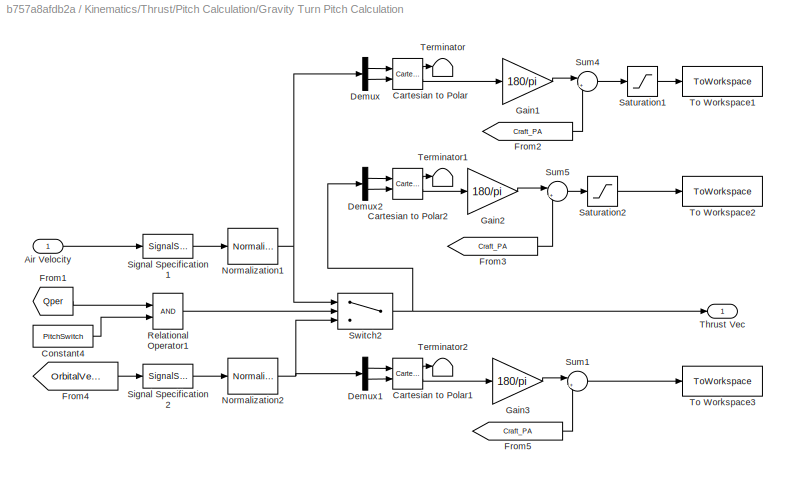
BLOCK [SubSystem] Kinematics/Thrust/Pitch Calculation/Gravity Turn Pitch Calculation
  Ports = [1, 1]
  RequestExecContextInheritance = off
BLOCK [Inport] Kinematics/Thrust/Pitch Calculation/Gravity Turn Pitch Calculation/Air Velocity
  IconDisplay = Port number
BLOCK [Reference] Kinematics/Thrust/Pitch Calculation/Gravity Turn Pitch Calculation/Cartesian to Polar  REF=simulink_extras/Transformations/Cartesian to
Polar
  Ports = [2, 2]
  SourceBlock = simulink_extras/Transformations/Cartesian to\nPolar
  SourceType = Cart2Polar
BLOCK [Reference] Kinematics/Thrust/Pitch Calculation/Gravity Turn Pitch Calculation/Cartesian to Polar1  REF=simulink_extras/Transformations/Cartesian to
Polar
  Ports = [2, 2]
  SourceBlock = simulink_extras/Transformations/Cartesian to\nPolar
  SourceType = Cart2Polar
BLOCK [Reference] Kinematics/Thrust/Pitch Calculation/Gravity Turn Pitch Calculation/Cartesian to Polar2  REF=simulink_extras/Transformations/Cartesian to
Polar
  Ports = [2, 2]
  SourceBlock = simulink_extras/Transformations/Cartesian to\nPolar
  SourceType = Cart2Polar
BLOCK [Constant] Kinematics/Thrust/Pitch Calculation/Gravity Turn Pitch Calculation/Constant4
  Value = PitchSwitch
BLOCK [Demux] Kinematics/Thrust/Pitch Calculation/Gravity Turn Pitch Calculation/Demux
  DisplayOption = bar
  Outputs = 2
  Ports = [1, 2]
BLOCK [Demux] Kinematics/Thrust/Pitch Calculation/Gravity Turn Pitch Calculation/Demux1
  DisplayOption = bar
  Outputs = 2
  Ports = [1, 2]
BLOCK [Demux] Kinematics/Thrust/Pitch Calculation/Gravity Turn Pitch Calculation/Demux2
  DisplayOption = bar
  Outputs = 2
  Ports = [1, 2]
BLOCK [From] Kinematics/Thrust/Pitch Calculation/Gravity Turn Pitch Calculation/From1
  GotoTag = Qper
  TagVisibility = global
BLOCK [From] Kinematics/Thrust/Pitch Calculation/Gravity Turn Pitch Calculation/From2
  GotoTag = Craft_PA
  TagVisibility = global
BLOCK [From] Kinematics/Thrust/Pitch Calculation/Gravity Turn Pitch Calculation/From3
  GotoTag = Craft_PA
  TagVisibility = global
BLOCK [From] Kinematics/Thrust/Pitch Calculation/Gravity Turn Pitch Calculation/From4
  GotoTag = OrbitalVelocity
  TagVisibility = global
BLOCK [From] Kinematics/Thrust/Pitch Calculation/Gravity Turn Pitch Calculation/From5
  GotoTag = Craft_PA
  TagVisibility = global
BLOCK [Gain] Kinematics/Thrust/Pitch Calculation/Gravity Turn Pitch Calculation/Gain1
  Gain = 180/pi
  OutDataTypeStr = Inherit: Inherit via internal rule
  ParamDataTypeStr = Inherit: Inherit via internal rule
  SaturateOnIntegerOverflow = off
BLOCK [Gain] Kinematics/Thrust/Pitch Calculation/Gravity Turn Pitch Calculation/Gain2
  Gain = 180/pi
  OutDataTypeStr = Inherit: Inherit via internal rule
  ParamDataTypeStr = Inherit: Inherit via internal rule
  SaturateOnIntegerOverflow = off
BLOCK [Gain] Kinematics/Thrust/Pitch Calculation/Gravity Turn Pitch Calculation/Gain3
  Gain = 180/pi
  OutDataTypeStr = Inherit: Inherit via internal rule
  ParamDataTypeStr = Inherit: Inherit via internal rule
  SaturateOnIntegerOverflow = off
BLOCK [Reference] Kinematics/Thrust/Pitch Calculation/Gravity Turn Pitch Calculation/Normalization1  REF=dspmathops/Normalization
  Bias = 1e-10
  ColComp = off
  Dimension = 1
  LockScale = off
  NormOver = Specified dimension
  NormType = 2-norm
  Ports = [1, 1]
  SourceBlock = dspmathops/Normalization
  SourceType = Normalization
  accumDataTypeStr = Inherit: Same as product output
  accumFracLength = 30
  accumLastDataTypeStr = Inherit: Same as product output
  accumMode = Same as product output
  accumWordLength = 32
  additionalParams = off
  allowOverrides = on
  outputDataTypeStr = Inherit: Same as input
  outputFracLength = 32
  outputLastDataTypeStr = Inherit: Same as input
  outputMax = []
  outputMin = []
  outputMode = Same as input
  outputWordLength = 32
  overflowMode = off
  prodOutputDataTypeStr = Inherit: Same as input
  prodOutputFracLength = 32
  prodOutputLastDataTypeStr = Inherit: Same as input
  prodOutputMode = Same as input
  prodOutputWordLength = 32
  roundingMode = Floor
BLOCK [Reference] Kinematics/Thrust/Pitch Calculation/Gravity Turn Pitch Calculation/Normalization2  REF=dspmathops/Normalization
  Bias = 1e-10
  ColComp = off
  Dimension = 1
  LockScale = off
  NormOver = Specified dimension
  NormType = 2-norm
  Ports = [1, 1]
  SourceBlock = dspmathops/Normalization
  SourceType = Normalization
  accumDataTypeStr = Inherit: Same as product output
  accumFracLength = 30
  accumLastDataTypeStr = Inherit: Same as product output
  accumMode = Same as product output
  accumWordLength = 32
  additionalParams = off
  allowOverrides = on
  outputDataTypeStr = Inherit: Same as input
  outputFracLength = 32
  outputLastDataTypeStr = Inherit: Same as input
  outputMax = []
  outputMin = []
  outputMode = Same as input
  outputWordLength = 32
  overflowMode = off
  prodOutputDataTypeStr = Inherit: Same as input
  prodOutputFracLength = 32
  prodOutputLastDataTypeStr = Inherit: Same as input
  prodOutputMode = Same as input
  prodOutputWordLength = 32
  roundingMode = Floor
BLOCK [RelationalOperator] Kinematics/Thrust/Pitch Calculation/Gravity Turn Pitch Calculation/Relational Operator1
  InputSameDT = off
  OutDataTypeStr = boolean
  Ports = [2, 1]
BLOCK [Saturate] Kinematics/Thrust/Pitch Calculation/Gravity Turn Pitch Calculation/Saturation1
  InputPortMap = u0
  LowerLimit = 0
  Ports = [1, 1]
  UpperLimit = 90
BLOCK [Saturate] Kinematics/Thrust/Pitch Calculation/Gravity Turn Pitch Calculation/Saturation2
  InputPortMap = u0
  LowerLimit = 0
  Ports = [1, 1]
  UpperLimit = 90
BLOCK [SignalSpecification] Kinematics/Thrust/Pitch Calculation/Gravity Turn Pitch Calculation/Signal Specification1
  Dimensions = 2
BLOCK [SignalSpecification] Kinematics/Thrust/Pitch Calculation/Gravity Turn Pitch Calculation/Signal Specification2
  Dimensions = 2
BLOCK [Sum] Kinematics/Thrust/Pitch Calculation/Gravity Turn Pitch Calculation/Sum1
  IconShape = round
  InputSameDT = off
  Inputs = |++
  OutDataTypeStr = Inherit: Inherit via internal rule
  Ports = [2, 1]
  SaturateOnIntegerOverflow = off
BLOCK [Sum] Kinematics/Thrust/Pitch Calculation/Gravity Turn Pitch Calculation/Sum4
  IconShape = round
  InputSameDT = off
  Inputs = |++
  OutDataTypeStr = Inherit: Inherit via internal rule
  Ports = [2, 1]
  SaturateOnIntegerOverflow = off
BLOCK [Sum] Kinematics/Thrust/Pitch Calculation/Gravity Turn Pitch Calculation/Sum5
  IconShape = round
  InputSameDT = off
  Inputs = |++
  OutDataTypeStr = Inherit: Inherit via internal rule
  Ports = [2, 1]
  SaturateOnIntegerOverflow = off
BLOCK [Switch] Kinematics/Thrust/Pitch Calculation/Gravity Turn Pitch Calculation/Switch2
  Criteria = u2 ~= 0
  InputSameDT = off
  SaturateOnIntegerOverflow = off
  Threshold = PitchOverAlt
BLOCK [Terminator] Kinematics/Thrust/Pitch Calculation/Gravity Turn Pitch Calculation/Terminator
BLOCK [Terminator] Kinematics/Thrust/Pitch Calculation/Gravity Turn Pitch Calculation/Terminator1
BLOCK [Terminator] Kinematics/Thrust/Pitch Calculation/Gravity Turn Pitch Calculation/Terminator2
BLOCK [Outport] Kinematics/Thrust/Pitch Calculation/Gravity Turn Pitch Calculation/Thrust Vec
  IconDisplay = Port number
BLOCK [ToWorkspace] Kinematics/Thrust/Pitch Calculation/Gravity Turn Pitch Calculation/To Workspace1
  FixptAsFi = on
  MaxDataPoints = inf
  Ports = [1]
  SampleTime = -1
  Save2DSignal = 3-D array (concatenate along third dimension)
  VariableName = FPA_Air
BLOCK [ToWorkspace] Kinematics/Thrust/Pitch Calculation/Gravity Turn Pitch Calculation/To Workspace2
  FixptAsFi = on
  MaxDataPoints = inf
  Ports = [1]
  SampleTime = -1
  Save2DSignal = 3-D array (concatenate along third dimension)
  VariableName = Pitch
BLOCK [ToWorkspace] Kinematics/Thrust/Pitch Calculation/Gravity Turn Pitch Calculation/To Workspace3
  FixptAsFi = on
  MaxDataPoints = inf
  Ports = [1]
  SampleTime = -1
  Save2DSignal = 3-D array (concatenate along third dimension)
  VariableName = FPA_Orbit
BLOCK [Inport] Kinematics/Thrust/Pitch Calculation/Position
  IconDisplay = Port number
  Port = 2
BLOCK [RelationalOperator] Kinematics/Thrust/Pitch Calculation/Relational Operator
  InputSameDT = off
  OutDataTypeStr = boolean
  Ports = [2, 1]
BLOCK [SubSystem] Kinematics/Thrust/Pitch Calculation/Subsystem
  Ports = [2, 1]
  RequestExecContextInheritance = off
BLOCK [Inport] Kinematics/Thrust/Pitch Calculation/Subsystem/Altitude
  IconDisplay = Port number
  Port = 2
BLOCK [Gain] Kinematics/Thrust/Pitch Calculation/Subsystem/Gain
  Gain = -pi/180
  OutDataTypeStr = Inherit: Inherit via internal rule
  ParamDataTypeStr = Inherit: Inherit via internal rule
  SaturateOnIntegerOverflow = off
BLOCK [Gain] Kinematics/Thrust/Pitch Calculation/Subsystem/Linear Pitch Over
  Gain = PitchOverAngle/PitchOverAlt
  OutDataTypeStr = Inherit: Inherit via internal rule
  ParamDataTypeStr = Inherit: Inherit via internal rule
  SaturateOnIntegerOverflow = off
BLOCK [Reference] Kinematics/Thrust/Pitch Calculation/Subsystem/Normalization  REF=dspmathops/Normalization
  Bias = 1e-10
  ColComp = off
  Dimension = 1
  LockScale = off
  NormOver = Specified dimension
  NormType = 2-norm
  Ports = [1, 1]
  SourceBlock = dspmathops/Normalization
  SourceType = Normalization
  accumDataTypeStr = Inherit: Same as product output
  accumFracLength = 30
  accumLastDataTypeStr = Inherit: Same as product output
  accumMode = Same as product output
  accumWordLength = 32
  additionalParams = off
  allowOverrides = on
  outputDataTypeStr = Inherit: Same as input
  outputFracLength = 32
  outputLastDataTypeStr = Inherit: Same as input
  outputMax = []
  outputMin = []
  outputMode = Same as input
  outputWordLength = 32
  overflowMode = off
  prodOutputDataTypeStr = Inherit: Same as input
  prodOutputFracLength = 32
  prodOutputLastDataTypeStr = Inherit: Same as input
  prodOutputMode = Same as input
  prodOutputWordLength = 32
  roundingMode = Floor
BLOCK [Inport] Kinematics/Thrust/Pitch Calculation/Subsystem/Position
  IconDisplay = Port number
BLOCK [Saturate] Kinematics/Thrust/Pitch Calculation/Subsystem/Saturation
  InputPortMap = u0
  LowerLimit = 0
  Ports = [1, 1]
  UpperLimit = 90
BLOCK [SignalSpecification] Kinematics/Thrust/Pitch Calculation/Subsystem/Signal Specification
  Dimensions = 2
BLOCK [Outport] Kinematics/Thrust/Pitch Calculation/Subsystem/Up Vector
  IconDisplay = Port number
BLOCK [SubSystem] Kinematics/Thrust/Pitch Calculation/Subsystem/Vector Rotation 2D
  Ports = [2, 1]
  RequestExecContextInheritance = off
BLOCK [Sum] Kinematics/Thrust/Pitch Calculation/Subsystem/Vector Rotation 2D/Add
  InputSameDT = off
  Inputs = +-
  OutDataTypeStr = Inherit: Inherit via internal rule
  Ports = [2, 1]
  SaturateOnIntegerOverflow = off
BLOCK [Sum] Kinematics/Thrust/Pitch Calculation/Subsystem/Vector Rotation 2D/Add1
  InputSameDT = off
  OutDataTypeStr = Inherit: Inherit via internal rule
  Ports = [2, 1]
  SaturateOnIntegerOverflow = off
BLOCK [Demux] Kinematics/Thrust/Pitch Calculation/Subsystem/Vector Rotation 2D/Demux
  DisplayOption = bar
  Outputs = 2
  Ports = [1, 2]
BLOCK [Mux] Kinematics/Thrust/Pitch Calculation/Subsystem/Vector Rotation 2D/Mux
  DisplayOption = bar
  Inputs = 2
  Ports = [2, 1]
BLOCK [Inport] Kinematics/Thrust/Pitch Calculation/Subsystem/Vector Rotation 2D/Phase Angle
  IconDisplay = Port number
  Port = 2
BLOCK [Inport] Kinematics/Thrust/Pitch Calculation/Subsystem/Vector Rotation 2D/Position
  IconDisplay = Port number
BLOCK [Product] Kinematics/Thrust/Pitch Calculation/Subsystem/Vector Rotation 2D/Product
  InputSameDT = off
  OutDataTypeStr = Inherit: Inherit via internal rule
  Ports = [2, 1]
  RndMeth = Floor
  SaturateOnIntegerOverflow = off
BLOCK [Product] Kinematics/Thrust/Pitch Calculation/Subsystem/Vector Rotation 2D/Product1
  InputSameDT = off
  OutDataTypeStr = Inherit: Inherit via internal rule
  Ports = [2, 1]
  RndMeth = Floor
  SaturateOnIntegerOverflow = off
BLOCK [Product] Kinematics/Thrust/Pitch Calculation/Subsystem/Vector Rotation 2D/Product2
  InputSameDT = off
  OutDataTypeStr = Inherit: Inherit via internal rule
  Ports = [2, 1]
  RndMeth = Floor
  SaturateOnIntegerOverflow = off
BLOCK [Product] Kinematics/Thrust/Pitch Calculation/Subsystem/Vector Rotation 2D/Product3
  InputSameDT = off
  OutDataTypeStr = Inherit: Inherit via internal rule
  Ports = [2, 1]
  RndMeth = Floor
  SaturateOnIntegerOverflow = off
BLOCK [Outport] Kinematics/Thrust/Pitch Calculation/Subsystem/Vector Rotation 2D/Rotated Vector 
  IconDisplay = Port number
BLOCK [Trigonometry] Kinematics/Thrust/Pitch Calculation/Subsystem/Vector Rotation 2D/Trigonometric Function
  Ports = [1, 1]
BLOCK [Trigonometry] Kinematics/Thrust/Pitch Calculation/Subsystem/Vector Rotation 2D/Trigonometric Function1
  Operator = cos
  Ports = [1, 1]
BLOCK [Switch] Kinematics/Thrust/Pitch Calculation/Switch1
  Criteria = u2 ~= 0
  InputSameDT = off
  SaturateOnIntegerOverflow = off
  Threshold = PitchOverAlt
BLOCK [Outport] Kinematics/Thrust/Pitch Calculation/Thrust Vector
  IconDisplay = Port number
BLOCK [Scope] Kinematics/Thrust/Pitch Calculation/Thrust Vector Scope
  Floating = off
  NumInputPorts = 1
  Ports = [1]
BLOCK [Inport] Kinematics/Thrust/Position
  IconDisplay = Port number
  Port = 2
BLOCK [Product] Kinematics/Thrust/Product1
  InputSameDT = off
  OutDataTypeStr = Inherit: Inherit via internal rule
  Ports = [2, 1]
  RndMeth = Floor
  SaturateOnIntegerOverflow = off
BLOCK [Outport] Kinematics/Thrust/ThrustAccel 
  IconDisplay = Port number
BLOCK [ToWorkspace] Kinematics/Thrust/To Workspace1
  FixptAsFi = on
  MaxDataPoints = inf
  Ports = [1]
  SampleTime = -1
  Save2DSignal = 3-D array (concatenate along third dimension)
  VariableName = Mass
BLOCK [SubSystem] Magnitude Calc4
  Ports = [1, 1]
  RequestExecContextInheritance = off
BLOCK [Sum] Magnitude Calc4/Add
  InputSameDT = off
  OutDataTypeStr = Inherit: Inherit via internal rule
  Ports = [2, 1]
  SaturateOnIntegerOverflow = off
BLOCK [Demux] Magnitude Calc4/Demux
  DisplayOption = bar
  Outputs = 2
  Ports = [1, 2]
BLOCK [Outport] Magnitude Calc4/Magnitude 
  IconDisplay = Port number
BLOCK [Math] Magnitude Calc4/Math Function
  Operator = square
  Ports = [1, 1]
BLOCK [Math] Magnitude Calc4/Math Function1
  Operator = square
  Ports = [1, 1]
BLOCK [Sqrt] Magnitude Calc4/Sqrt
BLOCK [Inport] Magnitude Calc4/Vector
  IconDisplay = Port number
BLOCK [SubSystem] Module For Air Velocity Calculation
  Ports = [2, 1]
  RequestExecContextInheritance = off
BLOCK [Outport] Module For Air Velocity Calculation/Air Velocity
  IconDisplay = Port number
BLOCK [Reference] Module For Air Velocity Calculation/Cross Product1  REF=vrlib/Utilities/Cross Product
  Ports = [2, 1]
  SourceBlock = vrlib/Utilities/Cross Product
  SourceType = Cross Product
BLOCK [From] Module For Air Velocity Calculation/From
  GotoTag = Planet_Ang_Vec
  TagVisibility = global
BLOCK [Goto] Module For Air Velocity Calculation/Goto2
  GotoTag = OrbitalSpeed
  TagVisibility = global
BLOCK [SubSystem] Module For Air Velocity Calculation/Magnitude Calc1
  Ports = [1, 1]
  RequestExecContextInheritance = off
BLOCK [Sum] Module For Air Velocity Calculation/Magnitude Calc1/Add
  InputSameDT = off
  OutDataTypeStr = Inherit: Inherit via internal rule
  Ports = [2, 1]
  SaturateOnIntegerOverflow = off
BLOCK [Demux] Module For Air Velocity Calculation/Magnitude Calc1/Demux
  DisplayOption = bar
  Outputs = 2
  Ports = [1, 2]
BLOCK [Outport] Module For Air Velocity Calculation/Magnitude Calc1/Magnitude 
  IconDisplay = Port number
BLOCK [Math] Module For Air Velocity Calculation/Magnitude Calc1/Math Function
  Operator = square
  Ports = [1, 1]
BLOCK [Math] Module For Air Velocity Calculation/Magnitude Calc1/Math Function1
  Operator = square
  Ports = [1, 1]
BLOCK [Sqrt] Module For Air Velocity Calculation/Magnitude Calc1/Sqrt
BLOCK [Inport] Module For Air Velocity Calculation/Magnitude Calc1/Vector
  IconDisplay = Port number
BLOCK [SubSystem] Module For Air Velocity Calculation/Magnitude Calc3
  Ports = [1, 1]
  RequestExecContextInheritance = off
BLOCK [Outport] Module For Air Velocity Calculation/Magnitude Calc3/2-out 
  IconDisplay = Port number
BLOCK [Inport] Module For Air Velocity Calculation/Magnitude Calc3/3-in
  IconDisplay = Port number
BLOCK [Demux] Module For Air Velocity Calculation/Magnitude Calc3/Demux4
  DisplayOption = bar
  Outputs = 3
  Ports = [1, 3]
BLOCK [Mux] Module For Air Velocity Calculation/Magnitude Calc3/Mux2
  DisplayOption = bar
  Inputs = 2
  Ports = [2, 1]
BLOCK [Terminator] Module For Air Velocity Calculation/Magnitude Calc3/Terminator3
BLOCK [Mux] Module For Air Velocity Calculation/Mux
  DisplayOption = bar
  Inputs = 2
  Ports = [2, 1]
BLOCK [Inport] Module For Air Velocity Calculation/Orbital Velocity
  IconDisplay = Port number
  Port = 2
BLOCK [Constant] Module For Air Velocity Calculation/Planet Rotation Speed1
  Value = 0
BLOCK [Inport] Module For Air Velocity Calculation/Position
  IconDisplay = Port number
BLOCK [Sum] Module For Air Velocity Calculation/Sum2
  IconShape = round
  InputSameDT = off
  Inputs = |-+
  OutDataTypeStr = Inherit: Inherit via internal rule
  Ports = [2, 1]
  SaturateOnIntegerOverflow = off
BLOCK [SubSystem] Orbital Mechanics Calculations
  Ports = [4]
  RequestExecContextInheritance = off
BLOCK [Inport] Orbital Mechanics Calculations/Altitude
  IconDisplay = Port number
  Port = 4
BLOCK [Stop] Orbital Mechanics Calculations/Atmo Alt Stop
BLOCK [Reference] Orbital Mechanics Calculations/Compare To Zero  REF=simulink/Logic and Bit
Operations/Compare
To Zero
  OutDataTypeStr = boolean
  Ports = [1, 1]
  SourceBlock = simulink/Logic and Bit\nOperations/Compare\nTo Zero
  SourceType = Compare To Zero
  ZeroCross = on
  relop = <
BLOCK [DotProduct] Orbital Mechanics Calculations/Dot Product
  OutDataTypeStr = Inherit: Inherit via internal rule
BLOCK [From] Orbital Mechanics Calculations/From5
  GotoTag = Vvert
  TagVisibility = global
BLOCK [Gain] Orbital Mechanics Calculations/Gain1
  Gain = 1.01
  OutDataTypeStr = Inherit: Inherit via internal rule
  ParamDataTypeStr = Inherit: Inherit via internal rule
  SaturateOnIntegerOverflow = off
BLOCK [Goto] Orbital Mechanics Calculations/Goto3
  GotoTag = Ra
  TagVisibility = global
BLOCK [Goto] Orbital Mechanics Calculations/Goto4
  GotoTag = eta_to_ap
  TagVisibility = global
BLOCK [Goto] Orbital Mechanics Calculations/Goto6
  GotoTag = TOR
  TagVisibility = global
BLOCK [Goto] Orbital Mechanics Calculations/Goto9
  GotoTag = Vvert
  TagVisibility = global
BLOCK [Reference] Orbital Mechanics Calculations/Normalization1  REF=dspmathops/Normalization
  Bias = 1e-10
  ColComp = off
  Dimension = 1
  LockScale = off
  NormOver = Specified dimension
  NormType = 2-norm
  Ports = [1, 1]
  SourceBlock = dspmathops/Normalization
  SourceType = Normalization
  accumDataTypeStr = Inherit: Same as product output
  accumFracLength = 30
  accumLastDataTypeStr = Inherit: Same as product output
  accumMode = Same as product output
  accumWordLength = 32
  additionalParams = off
  allowOverrides = on
  outputDataTypeStr = Inherit: Same as input
  outputFracLength = 32
  outputLastDataTypeStr = Inherit: Same as input
  outputMax = []
  outputMin = []
  outputMode = Same as input
  outputWordLength = 32
  overflowMode = off
  prodOutputDataTypeStr = Inherit: Same as input
  prodOutputFracLength = 32
  prodOutputLastDataTypeStr = Inherit: Same as input
  prodOutputMode = Same as input
  prodOutputWordLength = 32
  roundingMode = Floor
BLOCK [SubSystem] Orbital Mechanics Calculations/Orbital Mechanics
  ErrorFcn = Stateflow.Translate.translate
  PermitHierarchicalResolution = ExplicitOnly
  Ports = [3, 6]
  RequestExecContextInheritance = off
  SFBlockType = MATLAB Function
  TreatAsAtomicUnit = on
BLOCK [Demux] Orbital Mechanics Calculations/Orbital Mechanics/ Demux 
  Outputs = 1
  Ports = [1, 1]
BLOCK [S-Function] Orbital Mechanics Calculations/Orbital Mechanics/ SFunction 
  EnableBusSupport = on
  FunctionName = sf_sfun
  Parameters = GM_planet,GndAlt_planet,R_planet
  PortCounts = [3 7]
  Ports = [3, 7]
  Tag = Stateflow S-Function NewOrbitSimulation 2
BLOCK [Terminator] Orbital Mechanics Calculations/Orbital Mechanics/ Terminator 
BLOCK [Inport] Orbital Mechanics Calculations/Orbital Mechanics/Altitude
  IconDisplay = Port number
  Port = 3
BLOCK [Inport] Orbital Mechanics Calculations/Orbital Mechanics/OrbitalSpeed
  IconDisplay = Port number
BLOCK [Outport] Orbital Mechanics Calculations/Orbital Mechanics/Ra
  IconDisplay = Port number
  Port = 5
BLOCK [Outport] Orbital Mechanics Calculations/Orbital Mechanics/Rp
  IconDisplay = Port number
  Port = 6
BLOCK [Inport] Orbital Mechanics Calculations/Orbital Mechanics/Vvert
  IconDisplay = Port number
  Port = 2
BLOCK [Outport] Orbital Mechanics Calculations/Orbital Mechanics/a
  IconDisplay = Port number
  Port = 3
BLOCK [Outport] Orbital Mechanics Calculations/Orbital Mechanics/ecc
  IconDisplay = Port number
  Port = 4
BLOCK [Outport] Orbital Mechanics Calculations/Orbital Mechanics/eta_to_ap
  IconDisplay = Port number
  Port = 2
BLOCK [Outport] Orbital Mechanics Calculations/Orbital Mechanics/h
  IconDisplay = Port number
BLOCK [Inport] Orbital Mechanics Calculations/Orbital Speed
  IconDisplay = Port number
BLOCK [Inport] Orbital Mechanics Calculations/Orbital Velocity
  IconDisplay = Port number
  Port = 2
BLOCK [Constant] Orbital Mechanics Calculations/Planet Rotation Speed4
  Value = TargetOrbit
BLOCK [Inport] Orbital Mechanics Calculations/Position
  IconDisplay = Port number
  Port = 3
BLOCK [RelationalOperator] Orbital Mechanics Calculations/Relational Operator
  InputSameDT = off
  OutDataTypeStr = boolean
  Ports = [2, 1]
BLOCK [SignalSpecification] Orbital Mechanics Calculations/Signal Specification1
  Dimensions = 2
BLOCK [ToWorkspace] Orbital Mechanics Calculations/To Workspace10
  FixptAsFi = on
  MaxDataPoints = inf
  Ports = [1]
  SampleTime = -1
  Save2DSignal = 3-D array (concatenate along third dimension)
  VariableName = ecc
BLOCK [ToWorkspace] Orbital Mechanics Calculations/To Workspace11
  FixptAsFi = on
  MaxDataPoints = 1
  Ports = [1]
  SampleTime = -1
  Save2DSignal = 3-D array (concatenate along third dimension)
  VariableName = ecc_check
BLOCK [ToWorkspace] Orbital Mechanics Calculations/To Workspace12
  FixptAsFi = on
  MaxDataPoints = 1
  Ports = [1]
  SampleTime = -1
  Save2DSignal = 3-D array (concatenate along third dimension)
  VariableName = Ra_check
BLOCK [ToWorkspace] Orbital Mechanics Calculations/To Workspace13
  FixptAsFi = on
  MaxDataPoints = 1
  Ports = [1]
  SampleTime = -1
  Save2DSignal = 3-D array (concatenate along third dimension)
  VariableName = a_check
BLOCK [ToWorkspace] Orbital Mechanics Calculations/To Workspace14
  FixptAsFi = on
  MaxDataPoints = inf
  Ports = [1]
  SampleTime = -1
  Save2DSignal = 3-D array (concatenate along third dimension)
  VariableName = eta_to_ap
BLOCK [ToWorkspace] Orbital Mechanics Calculations/To Workspace15
  FixptAsFi = on
  MaxDataPoints = 1
  Ports = [1]
  SampleTime = -1
  Save2DSignal = 3-D array (concatenate along third dimension)
  VariableName = h_check
BLOCK [ToWorkspace] Orbital Mechanics Calculations/To Workspace8
  FixptAsFi = on
  MaxDataPoints = inf
  Ports = [1]
  SampleTime = -1
  Save2DSignal = 3-D array (concatenate along third dimension)
  VariableName = Rp
BLOCK [ToWorkspace] Orbital Mechanics Calculations/To Workspace9
  FixptAsFi = on
  MaxDataPoints = inf
  Ports = [1]
  SampleTime = -1
  Save2DSignal = 3-D array (concatenate along third dimension)
  VariableName = Ra
BLOCK [Constant] Planet Rotation Speed2
  Value = g0
BLOCK [Integrator] Position_Craft
  InitialCondition = CraftInitialP
  Ports = [1, 1]
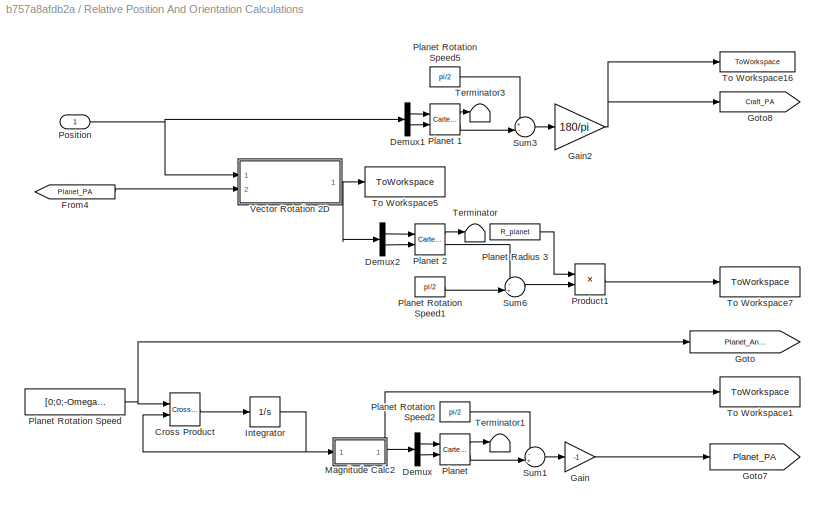
BLOCK [SubSystem] Relative Position And Orientation Calculations
  Ports = [1]
  RequestExecContextInheritance = off
BLOCK [Reference] Relative Position And Orientation Calculations/Cross Product  REF=vrlib/Utilities/Cross Product
  Ports = [2, 1]
  SourceBlock = vrlib/Utilities/Cross Product
  SourceType = Cross Product
BLOCK [Demux] Relative Position And Orientation Calculations/Demux
  DisplayOption = bar
  Outputs = 2
  Ports = [1, 2]
BLOCK [Demux] Relative Position And Orientation Calculations/Demux1
  DisplayOption = bar
  Outputs = 2
  Ports = [1, 2]
BLOCK [Demux] Relative Position And Orientation Calculations/Demux2
  DisplayOption = bar
  Outputs = 2
  Ports = [1, 2]
BLOCK [From] Relative Position And Orientation Calculations/From4
  GotoTag = Planet_PA
BLOCK [Gain] Relative Position And Orientation Calculations/Gain
  Gain = -1
  OutDataTypeStr = Inherit: Inherit via internal rule
  ParamDataTypeStr = Inherit: Inherit via internal rule
  SaturateOnIntegerOverflow = off
BLOCK [Gain] Relative Position And Orientation Calculations/Gain2
  Gain = 180/pi
  OutDataTypeStr = Inherit: Inherit via internal rule
  ParamDataTypeStr = Inherit: Inherit via internal rule
  SaturateOnIntegerOverflow = off
BLOCK [Goto] Relative Position And Orientation Calculations/Goto
  GotoTag = Planet_Ang_Vec
  TagVisibility = global
BLOCK [Goto] Relative Position And Orientation Calculations/Goto7
  GotoTag = Planet_PA
BLOCK [Goto] Relative Position And Orientation Calculations/Goto8
  GotoTag = Craft_PA
  TagVisibility = global
BLOCK [Integrator] Relative Position And Orientation Calculations/Integrator
  InitialCondition = [0;R_planet;0]
  Ports = [1, 1]
BLOCK [SubSystem] Relative Position And Orientation Calculations/Magnitude Calc2
  Ports = [1, 1]
  RequestExecContextInheritance = off
BLOCK [Outport] Relative Position And Orientation Calculations/Magnitude Calc2/2-out 
  IconDisplay = Port number
BLOCK [Inport] Relative Position And Orientation Calculations/Magnitude Calc2/3-in
  IconDisplay = Port number
BLOCK [Demux] Relative Position And Orientation Calculations/Magnitude Calc2/Demux4
  DisplayOption = bar
  Outputs = 3
  Ports = [1, 3]
BLOCK [Mux] Relative Position And Orientation Calculations/Magnitude Calc2/Mux2
  DisplayOption = bar
  Inputs = 2
  Ports = [2, 1]
BLOCK [Terminator] Relative Position And Orientation Calculations/Magnitude Calc2/Terminator3
BLOCK [Reference] Relative Position And Orientation Calculations/Planet   REF=simulink_extras/Transformations/Cartesian to
Polar
  Ports = [2, 2]
  SourceBlock = simulink_extras/Transformations/Cartesian to\nPolar
  SourceType = Cart2Polar
BLOCK [Reference] Relative Position And Orientation Calculations/Planet 1  REF=simulink_extras/Transformations/Cartesian to
Polar
  Ports = [2, 2]
  SourceBlock = simulink_extras/Transformations/Cartesian to\nPolar
  SourceType = Cart2Polar
BLOCK [Reference] Relative Position And Orientation Calculations/Planet 2  REF=simulink_extras/Transformations/Cartesian to
Polar
  Ports = [2, 2]
  SourceBlock = simulink_extras/Transformations/Cartesian to\nPolar
  SourceType = Cart2Polar
BLOCK [Constant] Relative Position And Orientation Calculations/Planet Radius 3
  Value = R_planet
BLOCK [Constant] Relative Position And Orientation Calculations/Planet Rotation Speed
  Value = [0;0;-Omega_planet]
BLOCK [Constant] Relative Position And Orientation Calculations/Planet Rotation Speed1
  Value = pi/2
BLOCK [Constant] Relative Position And Orientation Calculations/Planet Rotation Speed2
  Value = pi/2
BLOCK [Constant] Relative Position And Orientation Calculations/Planet Rotation Speed5
  Value = pi/2
BLOCK [Inport] Relative Position And Orientation Calculations/Position
  IconDisplay = Port number
BLOCK [Product] Relative Position And Orientation Calculations/Product1
  InputSameDT = off
  OutDataTypeStr = Inherit: Inherit via internal rule
  Ports = [2, 1]
  RndMeth = Floor
  SaturateOnIntegerOverflow = off
BLOCK [Sum] Relative Position And Orientation Calculations/Sum1
  IconShape = round
  InputSameDT = off
  Inputs = -+|
  OutDataTypeStr = Inherit: Inherit via internal rule
  Ports = [2, 1]
  SaturateOnIntegerOverflow = off
BLOCK [Sum] Relative Position And Orientation Calculations/Sum3
  IconShape = round
  InputSameDT = off
  Inputs = +-|
  OutDataTypeStr = Inherit: Inherit via internal rule
  Ports = [2, 1]
  SaturateOnIntegerOverflow = off
BLOCK [Sum] Relative Position And Orientation Calculations/Sum6
  IconShape = round
  InputSameDT = off
  Inputs = -+|
  OutDataTypeStr = Inherit: Inherit via internal rule
  Ports = [2, 1]
  SaturateOnIntegerOverflow = off
BLOCK [Terminator] Relative Position And Orientation Calculations/Terminator
BLOCK [Terminator] Relative Position And Orientation Calculations/Terminator1
BLOCK [Terminator] Relative Position And Orientation Calculations/Terminator3
BLOCK [ToWorkspace] Relative Position And Orientation Calculations/To Workspace1
  FixptAsFi = on
  MaxDataPoints = inf
  Ports = [1]
  SampleTime = -1
  Save2DSignal = 3-D array (concatenate along third dimension)
  VariableName = Ground_Station
BLOCK [ToWorkspace] Relative Position And Orientation Calculations/To Workspace16
  FixptAsFi = on
  MaxDataPoints = inf
  Ports = [1]
  SampleTime = -1
  Save2DSignal = 3-D array (concatenate along third dimension)
  VariableName = Craft_PA
BLOCK [ToWorkspace] Relative Position And Orientation Calculations/To Workspace5
  FixptAsFi = on
  MaxDataPoints = inf
  Ports = [1]
  SampleTime = -1
  Save2DSignal = 3-D array (concatenate along third dimension)
  VariableName = PlanetRelative
BLOCK [ToWorkspace] Relative Position And Orientation Calculations/To Workspace7
  FixptAsFi = on
  MaxDataPoints = inf
  Ports = [1]
  SampleTime = -1
  Save2DSignal = 3-D array (concatenate along third dimension)
  VariableName = Ground_Craft
BLOCK [SubSystem] Relative Position And Orientation Calculations/Vector Rotation 2D
  Ports = [2, 1]
  RequestExecContextInheritance = off
BLOCK [Sum] Relative Position And Orientation Calculations/Vector Rotation 2D/Add
  InputSameDT = off
  Inputs = +-
  OutDataTypeStr = Inherit: Inherit via internal rule
  Ports = [2, 1]
  SaturateOnIntegerOverflow = off
BLOCK [Sum] Relative Position And Orientation Calculations/Vector Rotation 2D/Add1
  InputSameDT = off
  OutDataTypeStr = Inherit: Inherit via internal rule
  Ports = [2, 1]
  SaturateOnIntegerOverflow = off
BLOCK [Demux] Relative Position And Orientation Calculations/Vector Rotation 2D/Demux
  DisplayOption = bar
  Outputs = 2
  Ports = [1, 2]
BLOCK [Mux] Relative Position And Orientation Calculations/Vector Rotation 2D/Mux
  DisplayOption = bar
  Inputs = 2
  Ports = [2, 1]
BLOCK [Inport] Relative Position And Orientation Calculations/Vector Rotation 2D/Phase Angle
  IconDisplay = Port number
  Port = 2
BLOCK [Inport] Relative Position And Orientation Calculations/Vector Rotation 2D/Position
  IconDisplay = Port number
BLOCK [Product] Relative Position And Orientation Calculations/Vector Rotation 2D/Product
  InputSameDT = off
  OutDataTypeStr = Inherit: Inherit via internal rule
  Ports = [2, 1]
  RndMeth = Floor
  SaturateOnIntegerOverflow = off
BLOCK [Product] Relative Position And Orientation Calculations/Vector Rotation 2D/Product1
  InputSameDT = off
  OutDataTypeStr = Inherit: Inherit via internal rule
  Ports = [2, 1]
  RndMeth = Floor
  SaturateOnIntegerOverflow = off
BLOCK [Product] Relative Position And Orientation Calculations/Vector Rotation 2D/Product2
  InputSameDT = off
  OutDataTypeStr = Inherit: Inherit via internal rule
  Ports = [2, 1]
  RndMeth = Floor
  SaturateOnIntegerOverflow = off
BLOCK [Product] Relative Position And Orientation Calculations/Vector Rotation 2D/Product3
  InputSameDT = off
  OutDataTypeStr = Inherit: Inherit via internal rule
  Ports = [2, 1]
  RndMeth = Floor
  SaturateOnIntegerOverflow = off
BLOCK [Outport] Relative Position And Orientation Calculations/Vector Rotation 2D/Rotated Vector 
  IconDisplay = Port number
BLOCK [Trigonometry] Relative Position And Orientation Calculations/Vector Rotation 2D/Trigonometric Function
  Ports = [1, 1]
BLOCK [Trigonometry] Relative Position And Orientation Calculations/Vector Rotation 2D/Trigonometric Function1
  Operator = cos
  Ports = [1, 1]
BLOCK [ToWorkspace] To Workspace1
  FixptAsFi = on
  MaxDataPoints = 1
  Ports = [1]
  SampleTime = -1
  Save2DSignal = 3-D array (concatenate along third dimension)
  VariableName = Alt_Check
BLOCK [ToWorkspace] To Workspace2
  FixptAsFi = on
  MaxDataPoints = inf
  Ports = [1]
  SampleTime = -1
  Save2DSignal = 3-D array (concatenate along third dimension)
  VariableName = Velocity
BLOCK [ToWorkspace] To Workspace3
  FixptAsFi = on
  MaxDataPoints = inf
  Ports = [1]
  SampleTime = -1
  Save2DSignal = 3-D array (concatenate along third dimension)
  VariableName = Craft
BLOCK [ToWorkspace] To Workspace4
  FixptAsFi = on
  MaxDataPoints = 1
  Ports = [1]
  SampleTime = -1
  Save2DSignal = 3-D array (concatenate along third dimension)
  VariableName = Ra_check3
BLOCK [ToWorkspace] To Workspace6
  FixptAsFi = on
  MaxDataPoints = inf
  Ports = [1]
  SampleTime = -1
  Save2DSignal = 3-D array (concatenate along third dimension)
  VariableName = G_load
BLOCK [Integrator] Velocity_Craft
  InitialCondition = CraftInitialV-[.1;0]
  Ports = [1, 1]
ANNOTATION Kinematics/Aerodynamics/Aerodynamic Calculations/Magnitude Calc1: This action controls the throttle. After reaching Max Q, The throttle is increased
ANNOTATION Kinematics/Thrust/Mass and fuel consumption/Out of fuel logic: This is a module designed to calculate when the ship is out of fuel and needs to stage The ship must also be close enough to the apoapsis, the coastin_parameter serves as a way to make sure the ship coasts to ignite the next stage. Might need to create some logic to turn this off
LINE Altitude Calculations And Altitude Stop Conditions/Magnitude Calc/Add:1 -> Altitude Calculations And Altitude Stop Conditions/Magnitude Calc/Sqrt:1
LINE Altitude Calculations And Altitude Stop Conditions/Magnitude Calc/Demux:1 -> Altitude Calculations And Altitude Stop Conditions/Magnitude Calc/Math Function1:1
LINE Altitude Calculations And Altitude Stop Conditions/Magnitude Calc/Demux:2 -> Altitude Calculations And Altitude Stop Conditions/Magnitude Calc/Math Function:1
LINE Altitude Calculations And Altitude Stop Conditions/Magnitude Calc/Math Function1:1 -> Altitude Calculations And Altitude Stop Conditions/Magnitude Calc/Add:1
LINE Altitude Calculations And Altitude Stop Conditions/Magnitude Calc/Math Function:1 -> Altitude Calculations And Altitude Stop Conditions/Magnitude Calc/Add:2
LINE Altitude Calculations And Altitude Stop Conditions/Magnitude Calc/Sqrt:1 -> Altitude Calculations And Altitude Stop Conditions/Magnitude Calc/Magnitude :1
LINE Altitude Calculations And Altitude Stop Conditions/Magnitude Calc/Vector:1 -> Altitude Calculations And Altitude Stop Conditions/Magnitude Calc/Demux:1
LINE Altitude Calculations And Altitude Stop Conditions/Magnitude Calc:1 -> Altitude Calculations And Altitude Stop Conditions/Sum:1
LINE Altitude Calculations And Altitude Stop Conditions/Planet Radius :1 -> Altitude Calculations And Altitude Stop Conditions/Sum:2
LINE Altitude Calculations And Altitude Stop Conditions/Position:1 -> Altitude Calculations And Altitude Stop Conditions/Magnitude Calc:1
LINE Altitude Calculations And Altitude Stop Conditions/Saturation1:1 -> Altitude Calculations And Altitude Stop Conditions/ Target Orbit Reached:1
LINE Altitude Calculations And Altitude Stop Conditions/Saturation:1 -> Altitude Calculations And Altitude Stop Conditions/Ground Hit:1
LINE Altitude Calculations And Altitude Stop Conditions/Stop Altitude:1 -> Altitude Calculations And Altitude Stop Conditions/Sum4:2
LINE Altitude Calculations And Altitude Stop Conditions/Sum4:1 -> Altitude Calculations And Altitude Stop Conditions/Saturation1:1
NET Altitude Calculations And Altitude Stop Conditions/Sum:1 -> Altitude Calculations And Altitude Stop Conditions/Altitude:1, Altitude Calculations And Altitude Stop Conditions/Goto1:1, Altitude Calculations And Altitude Stop Conditions/Saturation:1, Altitude Calculations And Altitude Stop Conditions/Sum4:1, Altitude Calculations And Altitude Stop Conditions/To Workspace4:1
NET Altitude Calculations And Altitude Stop Conditions:1 -> Kinematics:3, To Workspace1:1
LINE Divide:1 -> To Workspace6:1
LINE From1:1 -> Orbital Mechanics Calculations:1
LINE From2:1 -> Relative Position And Orientation Calculations:1
LINE From3:1 -> Orbital Mechanics Calculations:4
LINE From6:1 -> Module For Air Velocity Calculation:2
NET From:1 -> Altitude Calculations And Altitude Stop Conditions:1, Kinematics:1, Module For Air Velocity Calculation:1
LINE Kinematics/Aerodynamics/Add:1 -> Kinematics/Aerodynamics/Switch:2
NET Kinematics/Aerodynamics/Aerodynamic Calculations/Air Velocity:1 -> Kinematics/Aerodynamics/Aerodynamic Calculations/Cl and Cd Calculation:1, Kinematics/Aerodynamics/Aerodynamic Calculations/Magnitude Calc1:1
NET Kinematics/Aerodynamics/Aerodynamic Calculations/Altitude:1 -> Kinematics/Aerodynamics/Aerodynamic Calculations/Cl and Cd Calculation:2, Kinematics/Aerodynamics/Aerodynamic Calculations/Magnitude Calc1:2
LINE Kinematics/Aerodynamics/Aerodynamic Calculations/Cl and Cd Calculation/Air Velocity Vector Normalized/Constant:1 -> Kinematics/Aerodynamics/Aerodynamic Calculations/Cl and Cd Calculation/Air Velocity Vector Normalized/Switch:3
LINE Kinematics/Aerodynamics/Aerodynamic Calculations/Cl and Cd Calculation/Air Velocity Vector Normalized/Demux3:1 -> Kinematics/Aerodynamics/Aerodynamic Calculations/Cl and Cd Calculation/Air Velocity Vector Normalized/Divide1:1
LINE Kinematics/Aerodynamics/Aerodynamic Calculations/Cl and Cd Calculation/Air Velocity Vector Normalized/Demux3:2 -> Kinematics/Aerodynamics/Aerodynamic Calculations/Cl and Cd Calculation/Air Velocity Vector Normalized/Divide2:1
LINE Kinematics/Aerodynamics/Aerodynamic Calculations/Cl and Cd Calculation/Air Velocity Vector Normalized/Divide1:1 -> Kinematics/Aerodynamics/Aerodynamic Calculations/Cl and Cd Calculation/Air Velocity Vector Normalized/Mux1:1
LINE Kinematics/Aerodynamics/Aerodynamic Calculations/Cl and Cd Calculation/Air Velocity Vector Normalized/Divide2:1 -> Kinematics/Aerodynamics/Aerodynamic Calculations/Cl and Cd Calculation/Air Velocity Vector Normalized/Mux1:2
LINE Kinematics/Aerodynamics/Aerodynamic Calculations/Cl and Cd Calculation/Air Velocity Vector Normalized/Magnitude Calc/Add:1 -> Kinematics/Aerodynamics/Aerodynamic Calculations/Cl and Cd Calculation/Air Velocity Vector Normalized/Magnitude Calc/Sqrt:1
LINE Kinematics/Aerodynamics/Aerodynamic Calculations/Cl and Cd Calculation/Air Velocity Vector Normalized/Magnitude Calc/Constant1:1 -> Kinematics/Aerodynamics/Aerodynamic Calculations/Cl and Cd Calculation/Air Velocity Vector Normalized/Magnitude Calc/Switch:3
LINE Kinematics/Aerodynamics/Aerodynamic Calculations/Cl and Cd Calculation/Air Velocity Vector Normalized/Magnitude Calc/Constant:1 -> Kinematics/Aerodynamics/Aerodynamic Calculations/Cl and Cd Calculation/Air Velocity Vector Normalized/Magnitude Calc/Switch:1
LINE Kinematics/Aerodynamics/Aerodynamic Calculations/Cl and Cd Calculation/Air Velocity Vector Normalized/Magnitude Calc/Demux:1 -> Kinematics/Aerodynamics/Aerodynamic Calculations/Cl and Cd Calculation/Air Velocity Vector Normalized/Magnitude Calc/Math Function1:1
LINE Kinematics/Aerodynamics/Aerodynamic Calculations/Cl and Cd Calculation/Air Velocity Vector Normalized/Magnitude Calc/Demux:2 -> Kinematics/Aerodynamics/Aerodynamic Calculations/Cl and Cd Calculation/Air Velocity Vector Normalized/Magnitude Calc/Math Function:1
LINE Kinematics/Aerodynamics/Aerodynamic Calculations/Cl and Cd Calculation/Air Velocity Vector Normalized/Magnitude Calc/Math Function1:1 -> Kinematics/Aerodynamics/Aerodynamic Calculations/Cl and Cd Calculation/Air Velocity Vector Normalized/Magnitude Calc/Add:1
LINE Kinematics/Aerodynamics/Aerodynamic Calculations/Cl and Cd Calculation/Air Velocity Vector Normalized/Magnitude Calc/Math Function:1 -> Kinematics/Aerodynamics/Aerodynamic Calculations/Cl and Cd Calculation/Air Velocity Vector Normalized/Magnitude Calc/Add:2
NET Kinematics/Aerodynamics/Aerodynamic Calculations/Cl and Cd Calculation/Air Velocity Vector Normalized/Magnitude Calc/Sqrt:1 -> Kinematics/Aerodynamics/Aerodynamic Calculations/Cl and Cd Calculation/Air Velocity Vector Normalized/Magnitude Calc/Magnitude :1, Kinematics/Aerodynamics/Aerodynamic Calculations/Cl and Cd Calculation/Air Velocity Vector Normalized/Magnitude Calc/Switch:2
LINE Kinematics/Aerodynamics/Aerodynamic Calculations/Cl and Cd Calculation/Air Velocity Vector Normalized/Magnitude Calc/Switch:1 -> Kinematics/Aerodynamics/Aerodynamic Calculations/Cl and Cd Calculation/Air Velocity Vector Normalized/Magnitude Calc/Is Zero:1
LINE Kinematics/Aerodynamics/Aerodynamic Calculations/Cl and Cd Calculation/Air Velocity Vector Normalized/Magnitude Calc/Vector:1 -> Kinematics/Aerodynamics/Aerodynamic Calculations/Cl and Cd Calculation/Air Velocity Vector Normalized/Magnitude Calc/Demux:1
LINE Kinematics/Aerodynamics/Aerodynamic Calculations/Cl and Cd Calculation/Air Velocity Vector Normalized/Magnitude Calc:1 -> Kinematics/Aerodynamics/Aerodynamic Calculations/Cl and Cd Calculation/Air Velocity Vector Normalized/Switch:1
LINE Kinematics/Aerodynamics/Aerodynamic Calculations/Cl and Cd Calculation/Air Velocity Vector Normalized/Magnitude Calc:2 -> Kinematics/Aerodynamics/Aerodynamic Calculations/Cl and Cd Calculation/Air Velocity Vector Normalized/Switch:2
LINE Kinematics/Aerodynamics/Aerodynamic Calculations/Cl and Cd Calculation/Air Velocity Vector Normalized/Mux1:1 -> Kinematics/Aerodynamics/Aerodynamic Calculations/Cl and Cd Calculation/Air Velocity Vector Normalized/Normalized :1
NET Kinematics/Aerodynamics/Aerodynamic Calculations/Cl and Cd Calculation/Air Velocity Vector Normalized/Switch:1 -> Kinematics/Aerodynamics/Aerodynamic Calculations/Cl and Cd Calculation/Air Velocity Vector Normalized/Divide1:2, Kinematics/Aerodynamics/Aerodynamic Calculations/Cl and Cd Calculation/Air Velocity Vector Normalized/Divide2:2
NET Kinematics/Aerodynamics/Aerodynamic Calculations/Cl and Cd Calculation/Air Velocity Vector Normalized/Vector:1 -> Kinematics/Aerodynamics/Aerodynamic Calculations/Cl and Cd Calculation/Air Velocity Vector Normalized/Demux3:1, Kinematics/Aerodynamics/Aerodynamic Calculations/Cl and Cd Calculation/Air Velocity Vector Normalized/Magnitude Calc:1
NET Kinematics/Aerodynamics/Aerodynamic Calculations/Cl and Cd Calculation/Air Velocity Vector Normalized:1 -> Kinematics/Aerodynamics/Aerodynamic Calculations/Cl and Cd Calculation/Gain:1, Kinematics/Aerodynamics/Aerodynamic Calculations/Cl and Cd Calculation/Magnitude Calc5:1
NET Kinematics/Aerodynamics/Aerodynamic Calculations/Cl and Cd Calculation/Air Velocity:1 -> Kinematics/Aerodynamics/Aerodynamic Calculations/Cl and Cd Calculation/Air Velocity Vector Normalized:1, Kinematics/Aerodynamics/Aerodynamic Calculations/Cl and Cd Calculation/Magnitude Calc:1
LINE Kinematics/Aerodynamics/Aerodynamic Calculations/Cl and Cd Calculation/Altitude :1 -> Kinematics/Aerodynamics/Aerodynamic Calculations/Cl and Cd Calculation/Mach Lookup:1
LINE Kinematics/Aerodynamics/Aerodynamic Calculations/Cl and Cd Calculation/Cd Lookup:1 -> Kinematics/Aerodynamics/Aerodynamic Calculations/Cl and Cd Calculation/Switch1:1
LINE Kinematics/Aerodynamics/Aerodynamic Calculations/Cl and Cd Calculation/Coefficient of Drag constant:1 -> Kinematics/Aerodynamics/Aerodynamic Calculations/Cl and Cd Calculation/Switch1:3
LINE Kinematics/Aerodynamics/Aerodynamic Calculations/Cl and Cd Calculation/Coefficient of Lift constant1:1 -> Kinematics/Aerodynamics/Aerodynamic Calculations/Cl and Cd Calculation/Switch2:1
LINE Kinematics/Aerodynamics/Aerodynamic Calculations/Cl and Cd Calculation/Coefficient of Lift constant2:1 -> Kinematics/Aerodynamics/Aerodynamic Calculations/Cl and Cd Calculation/Switch1:2
LINE Kinematics/Aerodynamics/Aerodynamic Calculations/Cl and Cd Calculation/Coefficient of Lift constant3:1 -> Kinematics/Aerodynamics/Aerodynamic Calculations/Cl and Cd Calculation/Switch3:2
LINE Kinematics/Aerodynamics/Aerodynamic Calculations/Cl and Cd Calculation/Coefficient of Lift constant4:1 -> Kinematics/Aerodynamics/Aerodynamic Calculations/Cl and Cd Calculation/Switch4:2
LINE Kinematics/Aerodynamics/Aerodynamic Calculations/Cl and Cd Calculation/Coefficient of Lift constant5:1 -> Kinematics/Aerodynamics/Aerodynamic Calculations/Cl and Cd Calculation/Switch2:2
LINE Kinematics/Aerodynamics/Aerodynamic Calculations/Cl and Cd Calculation/Coefficient of Lift constant6:1 -> Kinematics/Aerodynamics/Aerodynamic Calculations/Cl and Cd Calculation/Switch3:3
LINE Kinematics/Aerodynamics/Aerodynamic Calculations/Cl and Cd Calculation/Coefficient of Lift constant7:1 -> Kinematics/Aerodynamics/Aerodynamic Calculations/Cl and Cd Calculation/Switch4:1
LINE Kinematics/Aerodynamics/Aerodynamic Calculations/Cl and Cd Calculation/Coefficient of Lift constant:1 -> Kinematics/Aerodynamics/Aerodynamic Calculations/Cl and Cd Calculation/Switch2:3
LINE Kinematics/Aerodynamics/Aerodynamic Calculations/Cl and Cd Calculation/Divide1:1 -> Kinematics/Aerodynamics/Aerodynamic Calculations/Cl and Cd Calculation/Subtract:1
LINE Kinematics/Aerodynamics/Aerodynamic Calculations/Cl and Cd Calculation/Divide2:1 -> Kinematics/Aerodynamics/Aerodynamic Calculations/Cl and Cd Calculation/Subtract:2
NET Kinematics/Aerodynamics/Aerodynamic Calculations/Cl and Cd Calculation/Divide:1 -> Kinematics/Aerodynamics/Aerodynamic Calculations/Cl and Cd Calculation/Cd Lookup:1, Kinematics/Aerodynamics/Aerodynamic Calculations/Cl and Cd Calculation/To Workspace1:1
LINE Kinematics/Aerodynamics/Aerodynamic Calculations/Cl and Cd Calculation/Gain:1 -> Kinematics/Aerodynamics/Aerodynamic Calculations/Cl and Cd Calculation/Divide1:2
LINE Kinematics/Aerodynamics/Aerodynamic Calculations/Cl and Cd Calculation/Mach Lookup:1 -> Kinematics/Aerodynamics/Aerodynamic Calculations/Cl and Cd Calculation/Divide:1
LINE Kinematics/Aerodynamics/Aerodynamic Calculations/Cl and Cd Calculation/Magnitude Calc/Add:1 -> Kinematics/Aerodynamics/Aerodynamic Calculations/Cl and Cd Calculation/Magnitude Calc/Sqrt:1
LINE Kinematics/Aerodynamics/Aerodynamic Calculations/Cl and Cd Calculation/Magnitude Calc/Demux:1 -> Kinematics/Aerodynamics/Aerodynamic Calculations/Cl and Cd Calculation/Magnitude Calc/Math Function1:1
LINE Kinematics/Aerodynamics/Aerodynamic Calculations/Cl and Cd Calculation/Magnitude Calc/Demux:2 -> Kinematics/Aerodynamics/Aerodynamic Calculations/Cl and Cd Calculation/Magnitude Calc/Math Function:1
LINE Kinematics/Aerodynamics/Aerodynamic Calculations/Cl and Cd Calculation/Magnitude Calc/Math Function1:1 -> Kinematics/Aerodynamics/Aerodynamic Calculations/Cl and Cd Calculation/Magnitude Calc/Add:1
LINE Kinematics/Aerodynamics/Aerodynamic Calculations/Cl and Cd Calculation/Magnitude Calc/Math Function:1 -> Kinematics/Aerodynamics/Aerodynamic Calculations/Cl and Cd Calculation/Magnitude Calc/Add:2
LINE Kinematics/Aerodynamics/Aerodynamic Calculations/Cl and Cd Calculation/Magnitude Calc/Sqrt:1 -> Kinematics/Aerodynamics/Aerodynamic Calculations/Cl and Cd Calculation/Magnitude Calc/Magnitude :1
LINE Kinematics/Aerodynamics/Aerodynamic Calculations/Cl and Cd Calculation/Magnitude Calc/Vector:1 -> Kinematics/Aerodynamics/Aerodynamic Calculations/Cl and Cd Calculation/Magnitude Calc/Demux:1
LINE Kinematics/Aerodynamics/Aerodynamic Calculations/Cl and Cd Calculation/Magnitude Calc5/Add1:1 -> Kinematics/Aerodynamics/Aerodynamic Calculations/Cl and Cd Calculation/Magnitude Calc5/Mux:2
LINE Kinematics/Aerodynamics/Aerodynamic Calculations/Cl and Cd Calculation/Magnitude Calc5/Add:1 -> Kinematics/Aerodynamics/Aerodynamic Calculations/Cl and Cd Calculation/Magnitude Calc5/Mux:1
NET Kinematics/Aerodynamics/Aerodynamic Calculations/Cl and Cd Calculation/Magnitude Calc5/Demux:1 -> Kinematics/Aerodynamics/Aerodynamic Calculations/Cl and Cd Calculation/Magnitude Calc5/Product2:2, Kinematics/Aerodynamics/Aerodynamic Calculations/Cl and Cd Calculation/Magnitude Calc5/Product:1
NET Kinematics/Aerodynamics/Aerodynamic Calculations/Cl and Cd Calculation/Magnitude Calc5/Demux:2 -> Kinematics/Aerodynamics/Aerodynamic Calculations/Cl and Cd Calculation/Magnitude Calc5/Product1:1, Kinematics/Aerodynamics/Aerodynamic Calculations/Cl and Cd Calculation/Magnitude Calc5/Product3:1
LINE Kinematics/Aerodynamics/Aerodynamic Calculations/Cl and Cd Calculation/Magnitude Calc5/Mux:1 -> Kinematics/Aerodynamics/Aerodynamic Calculations/Cl and Cd Calculation/Magnitude Calc5/Rotated Vector :1
NET Kinematics/Aerodynamics/Aerodynamic Calculations/Cl and Cd Calculation/Magnitude Calc5/Phase Angle:1 -> Kinematics/Aerodynamics/Aerodynamic Calculations/Cl and Cd Calculation/Magnitude Calc5/Trigonometric Function1:1, Kinematics/Aerodynamics/Aerodynamic Calculations/Cl and Cd Calculation/Magnitude Calc5/Trigonometric Function:1
LINE Kinematics/Aerodynamics/Aerodynamic Calculations/Cl and Cd Calculation/Magnitude Calc5/Product1:1 -> Kinematics/Aerodynamics/Aerodynamic Calculations/Cl and Cd Calculation/Magnitude Calc5/Add:2
LINE Kinematics/Aerodynamics/Aerodynamic Calculations/Cl and Cd Calculation/Magnitude Calc5/Product2:1 -> Kinematics/Aerodynamics/Aerodynamic Calculations/Cl and Cd Calculation/Magnitude Calc5/Add1:1
LINE Kinematics/Aerodynamics/Aerodynamic Calculations/Cl and Cd Calculation/Magnitude Calc5/Product3:1 -> Kinematics/Aerodynamics/Aerodynamic Calculations/Cl and Cd Calculation/Magnitude Calc5/Add1:2
LINE Kinematics/Aerodynamics/Aerodynamic Calculations/Cl and Cd Calculation/Magnitude Calc5/Product:1 -> Kinematics/Aerodynamics/Aerodynamic Calculations/Cl and Cd Calculation/Magnitude Calc5/Add:1
NET Kinematics/Aerodynamics/Aerodynamic Calculations/Cl and Cd Calculation/Magnitude Calc5/Trigonometric Function1:1 -> Kinematics/Aerodynamics/Aerodynamic Calculations/Cl and Cd Calculation/Magnitude Calc5/Product3:2, Kinematics/Aerodynamics/Aerodynamic Calculations/Cl and Cd Calculation/Magnitude Calc5/Product:2
NET Kinematics/Aerodynamics/Aerodynamic Calculations/Cl and Cd Calculation/Magnitude Calc5/Trigonometric Function:1 -> Kinematics/Aerodynamics/Aerodynamic Calculations/Cl and Cd Calculation/Magnitude Calc5/Product1:2, Kinematics/Aerodynamics/Aerodynamic Calculations/Cl and Cd Calculation/Magnitude Calc5/Product2:1
LINE Kinematics/Aerodynamics/Aerodynamic Calculations/Cl and Cd Calculation/Magnitude Calc5/Vector:1 -> Kinematics/Aerodynamics/Aerodynamic Calculations/Cl and Cd Calculation/Magnitude Calc5/Demux:1
LINE Kinematics/Aerodynamics/Aerodynamic Calculations/Cl and Cd Calculation/Magnitude Calc5:1 -> Kinematics/Aerodynamics/Aerodynamic Calculations/Cl and Cd Calculation/Divide2:1
LINE Kinematics/Aerodynamics/Aerodynamic Calculations/Cl and Cd Calculation/Magnitude Calc:1 -> Kinematics/Aerodynamics/Aerodynamic Calculations/Cl and Cd Calculation/Divide:2
LINE Kinematics/Aerodynamics/Aerodynamic Calculations/Cl and Cd Calculation/Referance Surface Area1:1 -> Kinematics/Aerodynamics/Aerodynamic Calculations/Cl and Cd Calculation/Magnitude Calc5:2
LINE Kinematics/Aerodynamics/Aerodynamic Calculations/Cl and Cd Calculation/Subtract:1 -> Kinematics/Aerodynamics/Aerodynamic Calculations/Cl and Cd Calculation/Cl + Cd:1
LINE Kinematics/Aerodynamics/Aerodynamic Calculations/Cl and Cd Calculation/Switch1:1 -> Kinematics/Aerodynamics/Aerodynamic Calculations/Cl and Cd Calculation/Switch3:1
LINE Kinematics/Aerodynamics/Aerodynamic Calculations/Cl and Cd Calculation/Switch2:1 -> Kinematics/Aerodynamics/Aerodynamic Calculations/Cl and Cd Calculation/Switch4:3
LINE Kinematics/Aerodynamics/Aerodynamic Calculations/Cl and Cd Calculation/Switch3:1 -> Kinematics/Aerodynamics/Aerodynamic Calculations/Cl and Cd Calculation/Divide1:1
LINE Kinematics/Aerodynamics/Aerodynamic Calculations/Cl and Cd Calculation/Switch4:1 -> Kinematics/Aerodynamics/Aerodynamic Calculations/Cl and Cd Calculation/Divide2:2
LINE Kinematics/Aerodynamics/Aerodynamic Calculations/Cl and Cd Calculation:1 -> Kinematics/Aerodynamics/Aerodynamic Calculations/Product:2
LINE Kinematics/Aerodynamics/Aerodynamic Calculations/Magnitude Calc1/Air Velocity:1 -> Kinematics/Aerodynamics/Aerodynamic Calculations/Magnitude Calc1/Magnitude Calc:1
LINE Kinematics/Aerodynamics/Aerodynamic Calculations/Magnitude Calc1/Altitude :1 -> Kinematics/Aerodynamics/Aerodynamic Calculations/Magnitude Calc1/Density Lookup:1
LINE Kinematics/Aerodynamics/Aerodynamic Calculations/Magnitude Calc1/Constant:1 -> Kinematics/Aerodynamics/Aerodynamic Calculations/Magnitude Calc1/MinMax Running Resettable:2
LINE Kinematics/Aerodynamics/Aerodynamic Calculations/Magnitude Calc1/Density Lookup:1 -> Kinematics/Aerodynamics/Aerodynamic Calculations/Magnitude Calc1/Product:1
LINE Kinematics/Aerodynamics/Aerodynamic Calculations/Magnitude Calc1/Divide:1 -> Kinematics/Aerodynamics/Aerodynamic Calculations/Magnitude Calc1/Goto:1
NET Kinematics/Aerodynamics/Aerodynamic Calculations/Magnitude Calc1/Gain:1 -> Kinematics/Aerodynamics/Aerodynamic Calculations/Magnitude Calc1/Divide:2, Kinematics/Aerodynamics/Aerodynamic Calculations/Magnitude Calc1/Dynamic Pressure :1, Kinematics/Aerodynamics/Aerodynamic Calculations/Magnitude Calc1/MinMax Running Resettable:1
LINE Kinematics/Aerodynamics/Aerodynamic Calculations/Magnitude Calc1/Magnitude Calc/Add:1 -> Kinematics/Aerodynamics/Aerodynamic Calculations/Magnitude Calc1/Magnitude Calc/Sqrt:1
LINE Kinematics/Aerodynamics/Aerodynamic Calculations/Magnitude Calc1/Magnitude Calc/Demux:1 -> Kinematics/Aerodynamics/Aerodynamic Calculations/Magnitude Calc1/Magnitude Calc/Math Function1:1
LINE Kinematics/Aerodynamics/Aerodynamic Calculations/Magnitude Calc1/Magnitude Calc/Demux:2 -> Kinematics/Aerodynamics/Aerodynamic Calculations/Magnitude Calc1/Magnitude Calc/Math Function:1
LINE Kinematics/Aerodynamics/Aerodynamic Calculations/Magnitude Calc1/Magnitude Calc/Math Function1:1 -> Kinematics/Aerodynamics/Aerodynamic Calculations/Magnitude Calc1/Magnitude Calc/Add:1
LINE Kinematics/Aerodynamics/Aerodynamic Calculations/Magnitude Calc1/Magnitude Calc/Math Function:1 -> Kinematics/Aerodynamics/Aerodynamic Calculations/Magnitude Calc1/Magnitude Calc/Add:2
LINE Kinematics/Aerodynamics/Aerodynamic Calculations/Magnitude Calc1/Magnitude Calc/Sqrt:1 -> Kinematics/Aerodynamics/Aerodynamic Calculations/Magnitude Calc1/Magnitude Calc/Magnitude :1
LINE Kinematics/Aerodynamics/Aerodynamic Calculations/Magnitude Calc1/Magnitude Calc/Vector:1 -> Kinematics/Aerodynamics/Aerodynamic Calculations/Magnitude Calc1/Magnitude Calc/Demux:1
NET Kinematics/Aerodynamics/Aerodynamic Calculations/Magnitude Calc1/Magnitude Calc:1 -> Kinematics/Aerodynamics/Aerodynamic Calculations/Magnitude Calc1/Math Function:1, Kinematics/Aerodynamics/Aerodynamic Calculations/Magnitude Calc1/To Workspace2:1
LINE Kinematics/Aerodynamics/Aerodynamic Calculations/Magnitude Calc1/Math Function:1 -> Kinematics/Aerodynamics/Aerodynamic Calculations/Magnitude Calc1/Product:2
NET Kinematics/Aerodynamics/Aerodynamic Calculations/Magnitude Calc1/MinMax Running Resettable:1 -> Kinematics/Aerodynamics/Aerodynamic Calculations/Magnitude Calc1/Divide:1, Kinematics/Aerodynamics/Aerodynamic Calculations/Magnitude Calc1/To Workspace1:1
LINE Kinematics/Aerodynamics/Aerodynamic Calculations/Magnitude Calc1/Product:1 -> Kinematics/Aerodynamics/Aerodynamic Calculations/Magnitude Calc1/Gain:1
LINE Kinematics/Aerodynamics/Aerodynamic Calculations/Magnitude Calc1:1 -> Kinematics/Aerodynamics/Aerodynamic Calculations/Product:1
LINE Kinematics/Aerodynamics/Aerodynamic Calculations/Product:1 -> Kinematics/Aerodynamics/Aerodynamic Calculations/Aeroforce :1
LINE Kinematics/Aerodynamics/Aerodynamic Calculations/Referance Surface Area:1 -> Kinematics/Aerodynamics/Aerodynamic Calculations/Product:3
LINE Kinematics/Aerodynamics/Aerodynamic Calculations:1 -> Kinematics/Aerodynamics/Switch:1
LINE Kinematics/Aerodynamics/Air Velocity:1 -> Kinematics/Aerodynamics/Aerodynamic Calculations:1
NET Kinematics/Aerodynamics/Altitude :1 -> Kinematics/Aerodynamics/Add:2, Kinematics/Aerodynamics/Aerodynamic Calculations:2
LINE Kinematics/Aerodynamics/Atmosphere Max Alt:1 -> Kinematics/Aerodynamics/Add:1
LINE Kinematics/Aerodynamics/Constant1:1 -> Kinematics/Aerodynamics/Switch:3
LINE Kinematics/Aerodynamics/Constant2:1 -> Kinematics/Aerodynamics/Switch1:2
LINE Kinematics/Aerodynamics/Constant3:1 -> Kinematics/Aerodynamics/Switch1:1
LINE Kinematics/Aerodynamics/Divide:1 -> Kinematics/Aerodynamics/Aeroaccel :1
LINE Kinematics/Aerodynamics/From:1 -> Kinematics/Aerodynamics/Divide:2
LINE Kinematics/Aerodynamics/Switch1:1 -> Kinematics/Aerodynamics/Divide:1
LINE Kinematics/Aerodynamics/Switch:1 -> Kinematics/Aerodynamics/Switch1:3
LINE Kinematics/Aerodynamics:1 -> Kinematics/Sum3:2
NET Kinematics/Air Velocity:1 -> Kinematics/Aerodynamics:1, Kinematics/Thrust:3
NET Kinematics/Altitude :1 -> Kinematics/Aerodynamics:2, Kinematics/Thrust:1
LINE Kinematics/Gravitational Acceleration/Divide:1 -> Kinematics/Gravitational Acceleration/Product:1
LINE Kinematics/Gravitational Acceleration/Gain:1 -> Kinematics/Gravitational Acceleration/Product:2
LINE Kinematics/Gravitational Acceleration/Magnitude Calc/Add:1 -> Kinematics/Gravitational Acceleration/Magnitude Calc/Sqrt:1
LINE Kinematics/Gravitational Acceleration/Magnitude Calc/Demux:1 -> Kinematics/Gravitational Acceleration/Magnitude Calc/Math Function1:1
LINE Kinematics/Gravitational Acceleration/Magnitude Calc/Demux:2 -> Kinematics/Gravitational Acceleration/Magnitude Calc/Math Function:1
LINE Kinematics/Gravitational Acceleration/Magnitude Calc/Math Function1:1 -> Kinematics/Gravitational Acceleration/Magnitude Calc/Add:1
LINE Kinematics/Gravitational Acceleration/Magnitude Calc/Math Function:1 -> Kinematics/Gravitational Acceleration/Magnitude Calc/Add:2
LINE Kinematics/Gravitational Acceleration/Magnitude Calc/Sqrt:1 -> Kinematics/Gravitational Acceleration/Magnitude Calc/Magnitude :1
LINE Kinematics/Gravitational Acceleration/Magnitude Calc/Vector:1 -> Kinematics/Gravitational Acceleration/Magnitude Calc/Demux:1
LINE Kinematics/Gravitational Acceleration/Magnitude Calc:1 -> Kinematics/Gravitational Acceleration/Math Function:1
LINE Kinematics/Gravitational Acceleration/Math Function:1 -> Kinematics/Gravitational Acceleration/Divide:2
LINE Kinematics/Gravitational Acceleration/Normalization:1 -> Kinematics/Gravitational Acceleration/Gain:1
LINE Kinematics/Gravitational Acceleration/Planet GM:1 -> Kinematics/Gravitational Acceleration/Divide:1
NET Kinematics/Gravitational Acceleration/Position:1 -> Kinematics/Gravitational Acceleration/Magnitude Calc:1, Kinematics/Gravitational Acceleration/Normalization:1
LINE Kinematics/Gravitational Acceleration/Product:1 -> Kinematics/Gravitational Acceleration/Gavity :1
LINE Kinematics/Gravitational Acceleration:1 -> Kinematics/Sum3:1
NET Kinematics/Position:1 -> Kinematics/Gravitational Acceleration:1, Kinematics/Thrust:2
LINE Kinematics/Sum3:1 -> Kinematics/Acceleration :1
LINE Kinematics/Thrust/AirVelocity:1 -> Kinematics/Thrust/Pitch Calculation:3
LINE Kinematics/Thrust/Altitude:1 -> Kinematics/Thrust/Pitch Calculation:1
LINE Kinematics/Thrust/Divide:1 -> Kinematics/Thrust/ThrustAccel :1
LINE Kinematics/Thrust/From:1 -> Kinematics/Thrust/Divide:2
LINE Kinematics/Thrust/Mass and fuel consumption/Chart:1 -> Kinematics/Thrust/Mass and fuel consumption/Thrust and Fuel Calculation:2
LINE Kinematics/Thrust/Mass and fuel consumption/Chart:2 -> Kinematics/Thrust/Mass and fuel consumption/Goto5:1
LINE Kinematics/Thrust/Mass and fuel consumption/Chart:3 -> Kinematics/Thrust/Mass and fuel consumption/Goto1:1
LINE Kinematics/Thrust/Mass and fuel consumption/Chart:4 -> Kinematics/Thrust/Mass and fuel consumption/Goto2:1
LINE Kinematics/Thrust/Mass and fuel consumption/Chart:5 -> Kinematics/Thrust/Mass and fuel consumption/Convert to kN:1
NET Kinematics/Thrust/Mass and fuel consumption/Chart:6 -> Kinematics/Thrust/Mass and fuel consumption/Thrust and Fuel Calculation:5, Kinematics/Thrust/Mass and fuel consumption/To Workspace3:1
LINE Kinematics/Thrust/Mass and fuel consumption/Chart:7 -> Kinematics/Thrust/Mass and fuel consumption/Throttle Calculation:1
LINE Kinematics/Thrust/Mass and fuel consumption/Convert to kN:1 -> Kinematics/Thrust/Mass and fuel consumption/Thrust and Fuel Calculation:4
LINE Kinematics/Thrust/Mass and fuel consumption/From1:1 -> Kinematics/Thrust/Mass and fuel consumption/Thrust and Fuel Calculation:7
LINE Kinematics/Thrust/Mass and fuel consumption/From3:1 -> Kinematics/Thrust/Mass and fuel consumption/Chart:1
NET Kinematics/Thrust/Mass and fuel consumption/From4:1 -> Kinematics/Thrust/Mass and fuel consumption/Sum1:2, Kinematics/Thrust/Mass and fuel consumption/To Workspace1:1
LINE Kinematics/Thrust/Mass and fuel consumption/From6:1 -> Kinematics/Thrust/Mass and fuel consumption/Relational Operator:1
LINE Kinematics/Thrust/Mass and fuel consumption/From8:1 -> Kinematics/Thrust/Mass and fuel consumption/Thrust and Fuel Calculation:1
LINE Kinematics/Thrust/Mass and fuel consumption/From:1 -> Kinematics/Thrust/Mass and fuel consumption/Thrust and Fuel Calculation:6
LINE Kinematics/Thrust/Mass and fuel consumption/Isp10:1 -> Kinematics/Thrust/Mass and fuel consumption/Switch2:3
LINE Kinematics/Thrust/Mass and fuel consumption/Isp17:1 -> Kinematics/Thrust/Mass and fuel consumption/Thrust and Fuel Calculation:3
NET Kinematics/Thrust/Mass and fuel consumption/Isp3:1 -> Kinematics/Thrust/Mass and fuel consumption/Chart:2, Kinematics/Thrust/Mass and fuel consumption/Throttle Calculation:2
LINE Kinematics/Thrust/Mass and fuel consumption/Isp7:1 -> Kinematics/Thrust/Mass and fuel consumption/Relational Operator:2
LINE Kinematics/Thrust/Mass and fuel consumption/Isp8:1 -> Kinematics/Thrust/Mass and fuel consumption/Switch2:1
LINE Kinematics/Thrust/Mass and fuel consumption/Out of fuel logic/Clock:1 -> Kinematics/Thrust/Mass and fuel consumption/Out of fuel logic/Relational Operator2:1
LINE Kinematics/Thrust/Mass and fuel consumption/Out of fuel logic/Compare To Constant:1 -> Kinematics/Thrust/Mass and fuel consumption/Out of fuel logic/Logical Operator:2
LINE Kinematics/Thrust/Mass and fuel consumption/Out of fuel logic/From9:1 -> Kinematics/Thrust/Mass and fuel consumption/Out of fuel logic/Relational Operator3:1
LINE Kinematics/Thrust/Mass and fuel consumption/Out of fuel logic/Fuel:1 -> Kinematics/Thrust/Mass and fuel consumption/Out of fuel logic/Compare To Constant:1
LINE Kinematics/Thrust/Mass and fuel consumption/Out of fuel logic/Isp12:1 -> Kinematics/Thrust/Mass and fuel consumption/Out of fuel logic/Relational Operator2:2
LINE Kinematics/Thrust/Mass and fuel consumption/Out of fuel logic/Isp13:1 -> Kinematics/Thrust/Mass and fuel consumption/Out of fuel logic/Relational Operator3:2
LINE Kinematics/Thrust/Mass and fuel consumption/Out of fuel logic/Isp14:1 -> Kinematics/Thrust/Mass and fuel consumption/Out of fuel logic/Switch4:3
LINE Kinematics/Thrust/Mass and fuel consumption/Out of fuel logic/Isp4:1 -> Kinematics/Thrust/Mass and fuel consumption/Out of fuel logic/Switch:1
LINE Kinematics/Thrust/Mass and fuel consumption/Out of fuel logic/Isp5:1 -> Kinematics/Thrust/Mass and fuel consumption/Out of fuel logic/Switch:3
LINE Kinematics/Thrust/Mass and fuel consumption/Out of fuel logic/Logical Operator:1 -> Kinematics/Thrust/Mass and fuel consumption/Out of fuel logic/Switch:2
NET Kinematics/Thrust/Mass and fuel consumption/Out of fuel logic/Memory:1 -> Kinematics/Thrust/Mass and fuel consumption/Out of fuel logic/OutOfFuel:1, Kinematics/Thrust/Mass and fuel consumption/Out of fuel logic/To Workspace2:1
LINE Kinematics/Thrust/Mass and fuel consumption/Out of fuel logic/Relational Operator2:1 -> Kinematics/Thrust/Mass and fuel consumption/Out of fuel logic/Switch4:2
LINE Kinematics/Thrust/Mass and fuel consumption/Out of fuel logic/Relational Operator3:1 -> Kinematics/Thrust/Mass and fuel consumption/Out of fuel logic/Logical Operator:1
LINE Kinematics/Thrust/Mass and fuel consumption/Out of fuel logic/Switch4:1 -> Kinematics/Thrust/Mass and fuel consumption/Out of fuel logic/Memory:1
LINE Kinematics/Thrust/Mass and fuel consumption/Out of fuel logic/Switch:1 -> Kinematics/Thrust/Mass and fuel consumption/Out of fuel logic/Switch4:1
LINE Kinematics/Thrust/Mass and fuel consumption/Out of fuel logic:1 -> Kinematics/Thrust/Mass and fuel consumption/Goto:1
LINE Kinematics/Thrust/Mass and fuel consumption/Relational Operator:1 -> Kinematics/Thrust/Mass and fuel consumption/Switch2:2
NET Kinematics/Thrust/Mass and fuel consumption/Sum1:1 -> Kinematics/Thrust/Mass and fuel consumption/Mass :1, Kinematics/Thrust/Mass and fuel consumption/To Workspace2:1
LINE Kinematics/Thrust/Mass and fuel consumption/Switch2:1 -> Kinematics/Thrust/Mass and fuel consumption/Terminator1:1
LINE Kinematics/Thrust/Mass and fuel consumption/Throttle Calculation/Bias1:1 -> Kinematics/Thrust/Mass and fuel consumption/Throttle Calculation/Product2:2
LINE Kinematics/Thrust/Mass and fuel consumption/Throttle Calculation/Bias:1 -> Kinematics/Thrust/Mass and fuel consumption/Throttle Calculation/Product2:1
LINE Kinematics/Thrust/Mass and fuel consumption/Throttle Calculation/Current Stage:1 -> Kinematics/Thrust/Mass and fuel consumption/Throttle Calculation/Relational Operator1:1
LINE Kinematics/Thrust/Mass and fuel consumption/Throttle Calculation/From10:1 -> Kinematics/Thrust/Mass and fuel consumption/Throttle Calculation/Switch5:2
LINE Kinematics/Thrust/Mass and fuel consumption/Throttle Calculation/From11:1 -> Kinematics/Thrust/Mass and fuel consumption/Throttle Calculation/Gain1:1
LINE Kinematics/Thrust/Mass and fuel consumption/Throttle Calculation/Gain1:1 -> Kinematics/Thrust/Mass and fuel consumption/Throttle Calculation/Bias1:1
LINE Kinematics/Thrust/Mass and fuel consumption/Throttle Calculation/Gain:1 -> Kinematics/Thrust/Mass and fuel consumption/Throttle Calculation/Bias:1
LINE Kinematics/Thrust/Mass and fuel consumption/Throttle Calculation/Isp11:1 -> Kinematics/Thrust/Mass and fuel consumption/Throttle Calculation/Switch3:1
LINE Kinematics/Thrust/Mass and fuel consumption/Throttle Calculation/Isp15:1 -> Kinematics/Thrust/Mass and fuel consumption/Throttle Calculation/Switch5:1
LINE Kinematics/Thrust/Mass and fuel consumption/Throttle Calculation/Isp16:1 -> Kinematics/Thrust/Mass and fuel consumption/Throttle Calculation/Gain:1
LINE Kinematics/Thrust/Mass and fuel consumption/Throttle Calculation/Isp9:1 -> Kinematics/Thrust/Mass and fuel consumption/Throttle Calculation/Sum2:1
LINE Kinematics/Thrust/Mass and fuel consumption/Throttle Calculation/Last Stage:1 -> Kinematics/Thrust/Mass and fuel consumption/Throttle Calculation/Relational Operator1:2
LINE Kinematics/Thrust/Mass and fuel consumption/Throttle Calculation/Product2:1 -> Kinematics/Thrust/Mass and fuel consumption/Throttle Calculation/Sum2:2
LINE Kinematics/Thrust/Mass and fuel consumption/Throttle Calculation/Relational Operator1:1 -> Kinematics/Thrust/Mass and fuel consumption/Throttle Calculation/Switch3:2
LINE Kinematics/Thrust/Mass and fuel consumption/Throttle Calculation/Sum2:1 -> Kinematics/Thrust/Mass and fuel consumption/Throttle Calculation/Switch3:3
LINE Kinematics/Thrust/Mass and fuel consumption/Throttle Calculation/Switch3:1 -> Kinematics/Thrust/Mass and fuel consumption/Throttle Calculation/Switch5:3
NET Kinematics/Thrust/Mass and fuel consumption/Throttle Calculation/Switch5:1 -> Kinematics/Thrust/Mass and fuel consumption/Throttle Calculation/Throttle:1, Kinematics/Thrust/Mass and fuel consumption/Throttle Calculation/Throttle_Scope:1
LINE Kinematics/Thrust/Mass and fuel consumption/Throttle Calculation:1 -> Kinematics/Thrust/Mass and fuel consumption/Goto6:1
LINE Kinematics/Thrust/Mass and fuel consumption/Thrust and Fuel Calculation/Convert to kN2:1 -> Kinematics/Thrust/Mass and fuel consumption/Thrust and Fuel Calculation/Fuel:1
LINE Kinematics/Thrust/Mass and fuel consumption/Thrust and Fuel Calculation/Divide1:1 -> Kinematics/Thrust/Mass and fuel consumption/Thrust and Fuel Calculation/Convert to kN2:1
LINE Kinematics/Thrust/Mass and fuel consumption/Thrust and Fuel Calculation/Dry Mass:1 -> Kinematics/Thrust/Mass and fuel consumption/Thrust and Fuel Calculation/Sum:2
LINE Kinematics/Thrust/Mass and fuel consumption/Thrust and Fuel Calculation/From5:1 -> Kinematics/Thrust/Mass and fuel consumption/Thrust and Fuel Calculation/Switch1:2
LINE Kinematics/Thrust/Mass and fuel consumption/Thrust and Fuel Calculation/From:1 -> Kinematics/Thrust/Mass and fuel consumption/Thrust and Fuel Calculation/Fuel:2
NET Kinematics/Thrust/Mass and fuel consumption/Thrust and Fuel Calculation/Fuel:1 -> Kinematics/Thrust/Mass and fuel consumption/Thrust and Fuel Calculation/Fuel :1, Kinematics/Thrust/Mass and fuel consumption/Thrust and Fuel Calculation/Fuel_Calc:1, Kinematics/Thrust/Mass and fuel consumption/Thrust and Fuel Calculation/Goto:1, Kinematics/Thrust/Mass and fuel consumption/Thrust and Fuel Calculation/To Workspace:1
LINE Kinematics/Thrust/Mass and fuel consumption/Thrust and Fuel Calculation/Isp1:1 -> Kinematics/Thrust/Mass and fuel consumption/Thrust and Fuel Calculation/Divide1:3
LINE Kinematics/Thrust/Mass and fuel consumption/Thrust and Fuel Calculation/Isp2:1 -> Kinematics/Thrust/Mass and fuel consumption/Thrust and Fuel Calculation/Switch6:3
LINE Kinematics/Thrust/Mass and fuel consumption/Thrust and Fuel Calculation/Isp6:1 -> Kinematics/Thrust/Mass and fuel consumption/Thrust and Fuel Calculation/Switch1:3
LINE Kinematics/Thrust/Mass and fuel consumption/Thrust and Fuel Calculation/Isp:1 -> Kinematics/Thrust/Mass and fuel consumption/Thrust and Fuel Calculation/Divide1:2
LINE Kinematics/Thrust/Mass and fuel consumption/Thrust and Fuel Calculation/Product1:1 -> Kinematics/Thrust/Mass and fuel consumption/Thrust and Fuel Calculation/Product:1
LINE Kinematics/Thrust/Mass and fuel consumption/Thrust and Fuel Calculation/Product:1 -> Kinematics/Thrust/Mass and fuel consumption/Thrust and Fuel Calculation/Switch1:1
LINE Kinematics/Thrust/Mass and fuel consumption/Thrust and Fuel Calculation/Rate Limiter:1 -> Kinematics/Thrust/Mass and fuel consumption/Thrust and Fuel Calculation/Thrust :1
LINE Kinematics/Thrust/Mass and fuel consumption/Thrust and Fuel Calculation/Sum:1 -> Kinematics/Thrust/Mass and fuel consumption/Thrust and Fuel Calculation/Fuel:3
NET Kinematics/Thrust/Mass and fuel consumption/Thrust and Fuel Calculation/Switch1:1 -> Kinematics/Thrust/Mass and fuel consumption/Thrust and Fuel Calculation/Divide1:1, Kinematics/Thrust/Mass and fuel consumption/Thrust and Fuel Calculation/Rate Limiter:1
LINE Kinematics/Thrust/Mass and fuel consumption/Thrust and Fuel Calculation/Switch6:1 -> Kinematics/Thrust/Mass and fuel consumption/Thrust and Fuel Calculation/Product:2
LINE Kinematics/Thrust/Mass and fuel consumption/Thrust and Fuel Calculation/Throttle:1 -> Kinematics/Thrust/Mass and fuel consumption/Thrust and Fuel Calculation/Product1:1
LINE Kinematics/Thrust/Mass and fuel consumption/Thrust and Fuel Calculation/Thrust:1 -> Kinematics/Thrust/Mass and fuel consumption/Thrust and Fuel Calculation/Switch6:1
LINE Kinematics/Thrust/Mass and fuel consumption/Thrust and Fuel Calculation/ThrustEnable:1 -> Kinematics/Thrust/Mass and fuel consumption/Thrust and Fuel Calculation/Switch6:2
LINE Kinematics/Thrust/Mass and fuel consumption/Thrust and Fuel Calculation/ThrustOn:1 -> Kinematics/Thrust/Mass and fuel consumption/Thrust and Fuel Calculation/Product1:2
LINE Kinematics/Thrust/Mass and fuel consumption/Thrust and Fuel Calculation/Wet Mass:1 -> Kinematics/Thrust/Mass and fuel consumption/Thrust and Fuel Calculation/Sum:1
NET Kinematics/Thrust/Mass and fuel consumption/Thrust and Fuel Calculation:1 -> Kinematics/Thrust/Mass and fuel consumption/Out of fuel logic:1, Kinematics/Thrust/Mass and fuel consumption/Sum1:1
NET Kinematics/Thrust/Mass and fuel consumption/Thrust and Fuel Calculation:2 -> Kinematics/Thrust/Mass and fuel consumption/Thrust :1, Kinematics/Thrust/Mass and fuel consumption/To Workspace4:1
NET Kinematics/Thrust/Mass and fuel consumption:1 -> Kinematics/Thrust/Goto:1, Kinematics/Thrust/To Workspace1:1
LINE Kinematics/Thrust/Mass and fuel consumption:2 -> Kinematics/Thrust/Product1:1
LINE Kinematics/Thrust/Pitch Calculation/AirVelocity:1 -> Kinematics/Thrust/Pitch Calculation/Gravity Turn Pitch Calculation:1
NET Kinematics/Thrust/Pitch Calculation/Altitude:1 -> Kinematics/Thrust/Pitch Calculation/Relational Operator:2, Kinematics/Thrust/Pitch Calculation/Subsystem:2
LINE Kinematics/Thrust/Pitch Calculation/Constant:1 -> Kinematics/Thrust/Pitch Calculation/Relational Operator:1
LINE Kinematics/Thrust/Pitch Calculation/Gravity Turn Pitch Calculation/Air Velocity:1 -> Kinematics/Thrust/Pitch Calculation/Gravity Turn Pitch Calculation/Signal Specification1:1
LINE Kinematics/Thrust/Pitch Calculation/Gravity Turn Pitch Calculation/Cartesian to Polar1:1 -> Kinematics/Thrust/Pitch Calculation/Gravity Turn Pitch Calculation/Terminator2:1
LINE Kinematics/Thrust/Pitch Calculation/Gravity Turn Pitch Calculation/Cartesian to Polar1:2 -> Kinematics/Thrust/Pitch Calculation/Gravity Turn Pitch Calculation/Gain3:1
LINE Kinematics/Thrust/Pitch Calculation/Gravity Turn Pitch Calculation/Cartesian to Polar2:1 -> Kinematics/Thrust/Pitch Calculation/Gravity Turn Pitch Calculation/Terminator1:1
LINE Kinematics/Thrust/Pitch Calculation/Gravity Turn Pitch Calculation/Cartesian to Polar2:2 -> Kinematics/Thrust/Pitch Calculation/Gravity Turn Pitch Calculation/Gain2:1
LINE Kinematics/Thrust/Pitch Calculation/Gravity Turn Pitch Calculation/Cartesian to Polar:1 -> Kinematics/Thrust/Pitch Calculation/Gravity Turn Pitch Calculation/Terminator:1
LINE Kinematics/Thrust/Pitch Calculation/Gravity Turn Pitch Calculation/Cartesian to Polar:2 -> Kinematics/Thrust/Pitch Calculation/Gravity Turn Pitch Calculation/Gain1:1
LINE Kinematics/Thrust/Pitch Calculation/Gravity Turn Pitch Calculation/Constant4:1 -> Kinematics/Thrust/Pitch Calculation/Gravity Turn Pitch Calculation/Relational Operator1:2
LINE Kinematics/Thrust/Pitch Calculation/Gravity Turn Pitch Calculation/Demux1:1 -> Kinematics/Thrust/Pitch Calculation/Gravity Turn Pitch Calculation/Cartesian to Polar1:1
LINE Kinematics/Thrust/Pitch Calculation/Gravity Turn Pitch Calculation/Demux1:2 -> Kinematics/Thrust/Pitch Calculation/Gravity Turn Pitch Calculation/Cartesian to Polar1:2
LINE Kinematics/Thrust/Pitch Calculation/Gravity Turn Pitch Calculation/Demux2:1 -> Kinematics/Thrust/Pitch Calculation/Gravity Turn Pitch Calculation/Cartesian to Polar2:1
LINE Kinematics/Thrust/Pitch Calculation/Gravity Turn Pitch Calculation/Demux2:2 -> Kinematics/Thrust/Pitch Calculation/Gravity Turn Pitch Calculation/Cartesian to Polar2:2
LINE Kinematics/Thrust/Pitch Calculation/Gravity Turn Pitch Calculation/Demux:1 -> Kinematics/Thrust/Pitch Calculation/Gravity Turn Pitch Calculation/Cartesian to Polar:1
LINE Kinematics/Thrust/Pitch Calculation/Gravity Turn Pitch Calculation/Demux:2 -> Kinematics/Thrust/Pitch Calculation/Gravity Turn Pitch Calculation/Cartesian to Polar:2
LINE Kinematics/Thrust/Pitch Calculation/Gravity Turn Pitch Calculation/From1:1 -> Kinematics/Thrust/Pitch Calculation/Gravity Turn Pitch Calculation/Relational Operator1:1
LINE Kinematics/Thrust/Pitch Calculation/Gravity Turn Pitch Calculation/From2:1 -> Kinematics/Thrust/Pitch Calculation/Gravity Turn Pitch Calculation/Sum4:2
LINE Kinematics/Thrust/Pitch Calculation/Gravity Turn Pitch Calculation/From3:1 -> Kinematics/Thrust/Pitch Calculation/Gravity Turn Pitch Calculation/Sum5:2
LINE Kinematics/Thrust/Pitch Calculation/Gravity Turn Pitch Calculation/From4:1 -> Kinematics/Thrust/Pitch Calculation/Gravity Turn Pitch Calculation/Signal Specification2:1
LINE Kinematics/Thrust/Pitch Calculation/Gravity Turn Pitch Calculation/From5:1 -> Kinematics/Thrust/Pitch Calculation/Gravity Turn Pitch Calculation/Sum1:2
LINE Kinematics/Thrust/Pitch Calculation/Gravity Turn Pitch Calculation/Gain1:1 -> Kinematics/Thrust/Pitch Calculation/Gravity Turn Pitch Calculation/Sum4:1
LINE Kinematics/Thrust/Pitch Calculation/Gravity Turn Pitch Calculation/Gain2:1 -> Kinematics/Thrust/Pitch Calculation/Gravity Turn Pitch Calculation/Sum5:1
LINE Kinematics/Thrust/Pitch Calculation/Gravity Turn Pitch Calculation/Gain3:1 -> Kinematics/Thrust/Pitch Calculation/Gravity Turn Pitch Calculation/Sum1:1
NET Kinematics/Thrust/Pitch Calculation/Gravity Turn Pitch Calculation/Normalization1:1 -> Kinematics/Thrust/Pitch Calculation/Gravity Turn Pitch Calculation/Demux:1, Kinematics/Thrust/Pitch Calculation/Gravity Turn Pitch Calculation/Switch2:1
NET Kinematics/Thrust/Pitch Calculation/Gravity Turn Pitch Calculation/Normalization2:1 -> Kinematics/Thrust/Pitch Calculation/Gravity Turn Pitch Calculation/Demux1:1, Kinematics/Thrust/Pitch Calculation/Gravity Turn Pitch Calculation/Switch2:3
LINE Kinematics/Thrust/Pitch Calculation/Gravity Turn Pitch Calculation/Relational Operator1:1 -> Kinematics/Thrust/Pitch Calculation/Gravity Turn Pitch Calculation/Switch2:2
LINE Kinematics/Thrust/Pitch Calculation/Gravity Turn Pitch Calculation/Saturation1:1 -> Kinematics/Thrust/Pitch Calculation/Gravity Turn Pitch Calculation/To Workspace1:1
LINE Kinematics/Thrust/Pitch Calculation/Gravity Turn Pitch Calculation/Saturation2:1 -> Kinematics/Thrust/Pitch Calculation/Gravity Turn Pitch Calculation/To Workspace2:1
LINE Kinematics/Thrust/Pitch Calculation/Gravity Turn Pitch Calculation/Signal Specification1:1 -> Kinematics/Thrust/Pitch Calculation/Gravity Turn Pitch Calculation/Normalization1:1
LINE Kinematics/Thrust/Pitch Calculation/Gravity Turn Pitch Calculation/Signal Specification2:1 -> Kinematics/Thrust/Pitch Calculation/Gravity Turn Pitch Calculation/Normalization2:1
LINE Kinematics/Thrust/Pitch Calculation/Gravity Turn Pitch Calculation/Sum1:1 -> Kinematics/Thrust/Pitch Calculation/Gravity Turn Pitch Calculation/To Workspace3:1
LINE Kinematics/Thrust/Pitch Calculation/Gravity Turn Pitch Calculation/Sum4:1 -> Kinematics/Thrust/Pitch Calculation/Gravity Turn Pitch Calculation/Saturation1:1
LINE Kinematics/Thrust/Pitch Calculation/Gravity Turn Pitch Calculation/Sum5:1 -> Kinematics/Thrust/Pitch Calculation/Gravity Turn Pitch Calculation/Saturation2:1
NET Kinematics/Thrust/Pitch Calculation/Gravity Turn Pitch Calculation/Switch2:1 -> Kinematics/Thrust/Pitch Calculation/Gravity Turn Pitch Calculation/Demux2:1, Kinematics/Thrust/Pitch Calculation/Gravity Turn Pitch Calculation/Thrust Vec:1
LINE Kinematics/Thrust/Pitch Calculation/Gravity Turn Pitch Calculation:1 -> Kinematics/Thrust/Pitch Calculation/Switch1:3
LINE Kinematics/Thrust/Pitch Calculation/Position:1 -> Kinematics/Thrust/Pitch Calculation/Subsystem:1
LINE Kinematics/Thrust/Pitch Calculation/Relational Operator:1 -> Kinematics/Thrust/Pitch Calculation/Switch1:2
LINE Kinematics/Thrust/Pitch Calculation/Subsystem/Altitude:1 -> Kinematics/Thrust/Pitch Calculation/Subsystem/Linear Pitch Over:1
LINE Kinematics/Thrust/Pitch Calculation/Subsystem/Gain:1 -> Kinematics/Thrust/Pitch Calculation/Subsystem/Vector Rotation 2D:2
LINE Kinematics/Thrust/Pitch Calculation/Subsystem/Linear Pitch Over:1 -> Kinematics/Thrust/Pitch Calculation/Subsystem/Saturation:1
LINE Kinematics/Thrust/Pitch Calculation/Subsystem/Normalization:1 -> Kinematics/Thrust/Pitch Calculation/Subsystem/Vector Rotation 2D:1
LINE Kinematics/Thrust/Pitch Calculation/Subsystem/Position:1 -> Kinematics/Thrust/Pitch Calculation/Subsystem/Signal Specification:1
LINE Kinematics/Thrust/Pitch Calculation/Subsystem/Saturation:1 -> Kinematics/Thrust/Pitch Calculation/Subsystem/Gain:1
LINE Kinematics/Thrust/Pitch Calculation/Subsystem/Signal Specification:1 -> Kinematics/Thrust/Pitch Calculation/Subsystem/Normalization:1
LINE Kinematics/Thrust/Pitch Calculation/Subsystem/Vector Rotation 2D/Add1:1 -> Kinematics/Thrust/Pitch Calculation/Subsystem/Vector Rotation 2D/Mux:2
LINE Kinematics/Thrust/Pitch Calculation/Subsystem/Vector Rotation 2D/Add:1 -> Kinematics/Thrust/Pitch Calculation/Subsystem/Vector Rotation 2D/Mux:1
NET Kinematics/Thrust/Pitch Calculation/Subsystem/Vector Rotation 2D/Demux:1 -> Kinematics/Thrust/Pitch Calculation/Subsystem/Vector Rotation 2D/Product2:2, Kinematics/Thrust/Pitch Calculation/Subsystem/Vector Rotation 2D/Product:1
NET Kinematics/Thrust/Pitch Calculation/Subsystem/Vector Rotation 2D/Demux:2 -> Kinematics/Thrust/Pitch Calculation/Subsystem/Vector Rotation 2D/Product1:1, Kinematics/Thrust/Pitch Calculation/Subsystem/Vector Rotation 2D/Product3:1
LINE Kinematics/Thrust/Pitch Calculation/Subsystem/Vector Rotation 2D/Mux:1 -> Kinematics/Thrust/Pitch Calculation/Subsystem/Vector Rotation 2D/Rotated Vector :1
NET Kinematics/Thrust/Pitch Calculation/Subsystem/Vector Rotation 2D/Phase Angle:1 -> Kinematics/Thrust/Pitch Calculation/Subsystem/Vector Rotation 2D/Trigonometric Function1:1, Kinematics/Thrust/Pitch Calculation/Subsystem/Vector Rotation 2D/Trigonometric Function:1
LINE Kinematics/Thrust/Pitch Calculation/Subsystem/Vector Rotation 2D/Position:1 -> Kinematics/Thrust/Pitch Calculation/Subsystem/Vector Rotation 2D/Demux:1
LINE Kinematics/Thrust/Pitch Calculation/Subsystem/Vector Rotation 2D/Product1:1 -> Kinematics/Thrust/Pitch Calculation/Subsystem/Vector Rotation 2D/Add:2
LINE Kinematics/Thrust/Pitch Calculation/Subsystem/Vector Rotation 2D/Product2:1 -> Kinematics/Thrust/Pitch Calculation/Subsystem/Vector Rotation 2D/Add1:1
LINE Kinematics/Thrust/Pitch Calculation/Subsystem/Vector Rotation 2D/Product3:1 -> Kinematics/Thrust/Pitch Calculation/Subsystem/Vector Rotation 2D/Add1:2
LINE Kinematics/Thrust/Pitch Calculation/Subsystem/Vector Rotation 2D/Product:1 -> Kinematics/Thrust/Pitch Calculation/Subsystem/Vector Rotation 2D/Add:1
NET Kinematics/Thrust/Pitch Calculation/Subsystem/Vector Rotation 2D/Trigonometric Function1:1 -> Kinematics/Thrust/Pitch Calculation/Subsystem/Vector Rotation 2D/Product3:2, Kinematics/Thrust/Pitch Calculation/Subsystem/Vector Rotation 2D/Product:2
NET Kinematics/Thrust/Pitch Calculation/Subsystem/Vector Rotation 2D/Trigonometric Function:1 -> Kinematics/Thrust/Pitch Calculation/Subsystem/Vector Rotation 2D/Product1:2, Kinematics/Thrust/Pitch Calculation/Subsystem/Vector Rotation 2D/Product2:1
LINE Kinematics/Thrust/Pitch Calculation/Subsystem/Vector Rotation 2D:1 -> Kinematics/Thrust/Pitch Calculation/Subsystem/Up Vector:1
LINE Kinematics/Thrust/Pitch Calculation/Subsystem:1 -> Kinematics/Thrust/Pitch Calculation/Switch1:1
NET Kinematics/Thrust/Pitch Calculation/Switch1:1 -> Kinematics/Thrust/Pitch Calculation/Thrust Vector Scope:1, Kinematics/Thrust/Pitch Calculation/Thrust Vector:1
LINE Kinematics/Thrust/Pitch Calculation:1 -> Kinematics/Thrust/Product1:2
LINE Kinematics/Thrust/Position:1 -> Kinematics/Thrust/Pitch Calculation:2
LINE Kinematics/Thrust/Product1:1 -> Kinematics/Thrust/Divide:1
LINE Kinematics/Thrust:1 -> Kinematics/Sum3:3
NET Kinematics:1 -> Magnitude Calc4:1, Velocity_Craft:1
LINE Magnitude Calc4/Add:1 -> Magnitude Calc4/Sqrt:1
LINE Magnitude Calc4/Demux:1 -> Magnitude Calc4/Math Function1:1
LINE Magnitude Calc4/Demux:2 -> Magnitude Calc4/Math Function:1
LINE Magnitude Calc4/Math Function1:1 -> Magnitude Calc4/Add:1
LINE Magnitude Calc4/Math Function:1 -> Magnitude Calc4/Add:2
LINE Magnitude Calc4/Sqrt:1 -> Magnitude Calc4/Magnitude :1
LINE Magnitude Calc4/Vector:1 -> Magnitude Calc4/Demux:1
LINE Magnitude Calc4:1 -> Divide:1
LINE Module For Air Velocity Calculation/Cross Product1:1 -> Module For Air Velocity Calculation/Magnitude Calc3:1
LINE Module For Air Velocity Calculation/From:1 -> Module For Air Velocity Calculation/Cross Product1:1
LINE Module For Air Velocity Calculation/Magnitude Calc1/Add:1 -> Module For Air Velocity Calculation/Magnitude Calc1/Sqrt:1
LINE Module For Air Velocity Calculation/Magnitude Calc1/Demux:1 -> Module For Air Velocity Calculation/Magnitude Calc1/Math Function1:1
LINE Module For Air Velocity Calculation/Magnitude Calc1/Demux:2 -> Module For Air Velocity Calculation/Magnitude Calc1/Math Function:1
LINE Module For Air Velocity Calculation/Magnitude Calc1/Math Function1:1 -> Module For Air Velocity Calculation/Magnitude Calc1/Add:1
LINE Module For Air Velocity Calculation/Magnitude Calc1/Math Function:1 -> Module For Air Velocity Calculation/Magnitude Calc1/Add:2
LINE Module For Air Velocity Calculation/Magnitude Calc1/Sqrt:1 -> Module For Air Velocity Calculation/Magnitude Calc1/Magnitude :1
LINE Module For Air Velocity Calculation/Magnitude Calc1/Vector:1 -> Module For Air Velocity Calculation/Magnitude Calc1/Demux:1
LINE Module For Air Velocity Calculation/Magnitude Calc1:1 -> Module For Air Velocity Calculation/Goto2:1
LINE Module For Air Velocity Calculation/Magnitude Calc3/3-in:1 -> Module For Air Velocity Calculation/Magnitude Calc3/Demux4:1
LINE Module For Air Velocity Calculation/Magnitude Calc3/Demux4:1 -> Module For Air Velocity Calculation/Magnitude Calc3/Mux2:1
LINE Module For Air Velocity Calculation/Magnitude Calc3/Demux4:2 -> Module For Air Velocity Calculation/Magnitude Calc3/Mux2:2
LINE Module For Air Velocity Calculation/Magnitude Calc3/Demux4:3 -> Module For Air Velocity Calculation/Magnitude Calc3/Terminator3:1
LINE Module For Air Velocity Calculation/Magnitude Calc3/Mux2:1 -> Module For Air Velocity Calculation/Magnitude Calc3/2-out :1
LINE Module For Air Velocity Calculation/Magnitude Calc3:1 -> Module For Air Velocity Calculation/Sum2:1
LINE Module For Air Velocity Calculation/Mux:1 -> Module For Air Velocity Calculation/Cross Product1:2
NET Module For Air Velocity Calculation/Orbital Velocity:1 -> Module For Air Velocity Calculation/Magnitude Calc1:1, Module For Air Velocity Calculation/Sum2:2
LINE Module For Air Velocity Calculation/Planet Rotation Speed1:1 -> Module For Air Velocity Calculation/Mux:2
LINE Module For Air Velocity Calculation/Position:1 -> Module For Air Velocity Calculation/Mux:1
LINE Module For Air Velocity Calculation/Sum2:1 -> Module For Air Velocity Calculation/Air Velocity:1
LINE Module For Air Velocity Calculation:1 -> Kinematics:2
LINE Orbital Mechanics Calculations/Altitude:1 -> Orbital Mechanics Calculations/Orbital Mechanics:3
LINE Orbital Mechanics Calculations/Compare To Zero:1 -> Orbital Mechanics Calculations/Atmo Alt Stop:1
NET Orbital Mechanics Calculations/Dot Product:1 -> Orbital Mechanics Calculations/Goto9:1, Orbital Mechanics Calculations/Orbital Mechanics:2
LINE Orbital Mechanics Calculations/From5:1 -> Orbital Mechanics Calculations/Compare To Zero:1
LINE Orbital Mechanics Calculations/Gain1:1 -> Orbital Mechanics Calculations/Relational Operator:2
LINE Orbital Mechanics Calculations/Normalization1:1 -> Orbital Mechanics Calculations/Dot Product:2
LINE Orbital Mechanics Calculations/Orbital Mechanics:1 -> Orbital Mechanics Calculations/To Workspace15:1
NET Orbital Mechanics Calculations/Orbital Mechanics:2 -> Orbital Mechanics Calculations/Goto4:1, Orbital Mechanics Calculations/To Workspace14:1
LINE Orbital Mechanics Calculations/Orbital Mechanics:3 -> Orbital Mechanics Calculations/To Workspace13:1
NET Orbital Mechanics Calculations/Orbital Mechanics:4 -> Orbital Mechanics Calculations/To Workspace10:1, Orbital Mechanics Calculations/To Workspace11:1
NET Orbital Mechanics Calculations/Orbital Mechanics:5 -> Orbital Mechanics Calculations/Goto3:1, Orbital Mechanics Calculations/Relational Operator:1, Orbital Mechanics Calculations/To Workspace12:1, Orbital Mechanics Calculations/To Workspace9:1
LINE Orbital Mechanics Calculations/Orbital Mechanics:6 -> Orbital Mechanics Calculations/To Workspace8:1
LINE Orbital Mechanics Calculations/Orbital Speed:1 -> Orbital Mechanics Calculations/Orbital Mechanics:1
LINE Orbital Mechanics Calculations/Orbital Velocity:1 -> Orbital Mechanics Calculations/Dot Product:1
LINE Orbital Mechanics Calculations/Planet Rotation Speed4:1 -> Orbital Mechanics Calculations/Gain1:1
LINE Orbital Mechanics Calculations/Position:1 -> Orbital Mechanics Calculations/Signal Specification1:1
LINE Orbital Mechanics Calculations/Relational Operator:1 -> Orbital Mechanics Calculations/Goto6:1
LINE Orbital Mechanics Calculations/Signal Specification1:1 -> Orbital Mechanics Calculations/Normalization1:1
LINE Planet Rotation Speed2:1 -> Divide:2
NET Position_Craft:1 -> Goto3:1, Orbital Mechanics Calculations:3, To Workspace3:1
LINE Relative Position And Orientation Calculations/Cross Product:1 -> Relative Position And Orientation Calculations/Integrator:1
LINE Relative Position And Orientation Calculations/Demux1:1 -> Relative Position And Orientation Calculations/Planet 1:1
LINE Relative Position And Orientation Calculations/Demux1:2 -> Relative Position And Orientation Calculations/Planet 1:2
LINE Relative Position And Orientation Calculations/Demux2:1 -> Relative Position And Orientation Calculations/Planet 2:1
LINE Relative Position And Orientation Calculations/Demux2:2 -> Relative Position And Orientation Calculations/Planet 2:2
LINE Relative Position And Orientation Calculations/Demux:1 -> Relative Position And Orientation Calculations/Planet :1
LINE Relative Position And Orientation Calculations/Demux:2 -> Relative Position And Orientation Calculations/Planet :2
LINE Relative Position And Orientation Calculations/From4:1 -> Relative Position And Orientation Calculations/Vector Rotation 2D:2
NET Relative Position And Orientation Calculations/Gain2:1 -> Relative Position And Orientation Calculations/Goto8:1, Relative Position And Orientation Calculations/To Workspace16:1
LINE Relative Position And Orientation Calculations/Gain:1 -> Relative Position And Orientation Calculations/Goto7:1
NET Relative Position And Orientation Calculations/Integrator:1 -> Relative Position And Orientation Calculations/Cross Product:2, Relative Position And Orientation Calculations/Magnitude Calc2:1
LINE Relative Position And Orientation Calculations/Magnitude Calc2/3-in:1 -> Relative Position And Orientation Calculations/Magnitude Calc2/Demux4:1
LINE Relative Position And Orientation Calculations/Magnitude Calc2/Demux4:1 -> Relative Position And Orientation Calculations/Magnitude Calc2/Mux2:1
LINE Relative Position And Orientation Calculations/Magnitude Calc2/Demux4:2 -> Relative Position And Orientation Calculations/Magnitude Calc2/Mux2:2
LINE Relative Position And Orientation Calculations/Magnitude Calc2/Demux4:3 -> Relative Position And Orientation Calculations/Magnitude Calc2/Terminator3:1
LINE Relative Position And Orientation Calculations/Magnitude Calc2/Mux2:1 -> Relative Position And Orientation Calculations/Magnitude Calc2/2-out :1
NET Relative Position And Orientation Calculations/Magnitude Calc2:1 -> Relative Position And Orientation Calculations/Demux:1, Relative Position And Orientation Calculations/To Workspace1:1
LINE Relative Position And Orientation Calculations/Planet 1:1 -> Relative Position And Orientation Calculations/Terminator3:1
LINE Relative Position And Orientation Calculations/Planet 1:2 -> Relative Position And Orientation Calculations/Sum3:2
LINE Relative Position And Orientation Calculations/Planet 2:1 -> Relative Position And Orientation Calculations/Terminator:1
LINE Relative Position And Orientation Calculations/Planet 2:2 -> Relative Position And Orientation Calculations/Sum6:1
LINE Relative Position And Orientation Calculations/Planet :1 -> Relative Position And Orientation Calculations/Terminator1:1
LINE Relative Position And Orientation Calculations/Planet :2 -> Relative Position And Orientation Calculations/Sum1:2
LINE Relative Position And Orientation Calculations/Planet Radius 3:1 -> Relative Position And Orientation Calculations/Product1:1
LINE Relative Position And Orientation Calculations/Planet Rotation Speed1:1 -> Relative Position And Orientation Calculations/Sum6:2
LINE Relative Position And Orientation Calculations/Planet Rotation Speed2:1 -> Relative Position And Orientation Calculations/Sum1:1
LINE Relative Position And Orientation Calculations/Planet Rotation Speed5:1 -> Relative Position And Orientation Calculations/Sum3:1
NET Relative Position And Orientation Calculations/Planet Rotation Speed:1 -> Relative Position And Orientation Calculations/Cross Product:1, Relative Position And Orientation Calculations/Goto:1
NET Relative Position And Orientation Calculations/Position:1 -> Relative Position And Orientation Calculations/Demux1:1, Relative Position And Orientation Calculations/Vector Rotation 2D:1
LINE Relative Position And Orientation Calculations/Product1:1 -> Relative Position And Orientation Calculations/To Workspace7:1
LINE Relative Position And Orientation Calculations/Sum1:1 -> Relative Position And Orientation Calculations/Gain:1
LINE Relative Position And Orientation Calculations/Sum3:1 -> Relative Position And Orientation Calculations/Gain2:1
LINE Relative Position And Orientation Calculations/Sum6:1 -> Relative Position And Orientation Calculations/Product1:2
LINE Relative Position And Orientation Calculations/Vector Rotation 2D/Add1:1 -> Relative Position And Orientation Calculations/Vector Rotation 2D/Mux:2
LINE Relative Position And Orientation Calculations/Vector Rotation 2D/Add:1 -> Relative Position And Orientation Calculations/Vector Rotation 2D/Mux:1
NET Relative Position And Orientation Calculations/Vector Rotation 2D/Demux:1 -> Relative Position And Orientation Calculations/Vector Rotation 2D/Product2:2, Relative Position And Orientation Calculations/Vector Rotation 2D/Product:1
NET Relative Position And Orientation Calculations/Vector Rotation 2D/Demux:2 -> Relative Position And Orientation Calculations/Vector Rotation 2D/Product1:1, Relative Position And Orientation Calculations/Vector Rotation 2D/Product3:1
LINE Relative Position And Orientation Calculations/Vector Rotation 2D/Mux:1 -> Relative Position And Orientation Calculations/Vector Rotation 2D/Rotated Vector :1
NET Relative Position And Orientation Calculations/Vector Rotation 2D/Phase Angle:1 -> Relative Position And Orientation Calculations/Vector Rotation 2D/Trigonometric Function1:1, Relative Position And Orientation Calculations/Vector Rotation 2D/Trigonometric Function:1
LINE Relative Position And Orientation Calculations/Vector Rotation 2D/Position:1 -> Relative Position And Orientation Calculations/Vector Rotation 2D/Demux:1
LINE Relative Position And Orientation Calculations/Vector Rotation 2D/Product1:1 -> Relative Position And Orientation Calculations/Vector Rotation 2D/Add:2
LINE Relative Position And Orientation Calculations/Vector Rotation 2D/Product2:1 -> Relative Position And Orientation Calculations/Vector Rotation 2D/Add1:1
LINE Relative Position And Orientation Calculations/Vector Rotation 2D/Product3:1 -> Relative Position And Orientation Calculations/Vector Rotation 2D/Add1:2
LINE Relative Position And Orientation Calculations/Vector Rotation 2D/Product:1 -> Relative Position And Orientation Calculations/Vector Rotation 2D/Add:1
NET Relative Position And Orientation Calculations/Vector Rotation 2D/Trigonometric Function1:1 -> Relative Position And Orientation Calculations/Vector Rotation 2D/Product3:2, Relative Position And Orientation Calculations/Vector Rotation 2D/Product:2
NET Relative Position And Orientation Calculations/Vector Rotation 2D/Trigonometric Function:1 -> Relative Position And Orientation Calculations/Vector Rotation 2D/Product1:2, Relative Position And Orientation Calculations/Vector Rotation 2D/Product2:1
NET Relative Position And Orientation Calculations/Vector Rotation 2D:1 -> Relative Position And Orientation Calculations/Demux2:1, Relative Position And Orientation Calculations/To Workspace5:1
NET Velocity_Craft:1 -> Goto5:1, Orbital Mechanics Calculations:2, Position_Craft:1, To Workspace2:1, To Workspace4:1
note: NET lines group one-source signal fan-out (src -> all destinations, sorted); 1:1 wires keep LINE
CHART Orbital Mechanics Calculations/Orbital Mechanics states=1 transitions=1
  STATE_LABEL 'eML_blk_kernel()'
  STATE_LABEL 'SCRIPT:\nfunction [h,eta_to_ap,a,ecc,Ra,Rp] = fcn(OrbitalSpeed,Vvert,Altitude,GM_planet,R_planet,GndAlt_planet)\n%#codegen\nRadius = Altitude + R_planet;\nVpar = Vvert;\nVper = sqrt(abs(OrbitalSpeed^2 - Vpar^2));\nh = Radius*Vper;\n\nE = OrbitalSpeed^2/2 - GM_planet/Radius;\na = -GM_planet/(2*E);\n\necc = sqrt(abs(1-((-2*E)*h^2)/(GM_planet^2)));\n\nRa = a*(1 + ecc) - (R_planet - GndAlt_planet);\nRp = a*(1 - ecc...<+278ch>'
CHART Kinematics/Thrust/Mass and fuel consumption/Chart states=4 transitions=5
  STATE_LABEL 'Start\n\nentry: Stage = 1;'
  STATE_LABEL 'Stage_Rocket_finish\nentry: ThrustToggle = 0\nentry: Stagging = 0\n'
  STATE_LABEL 'Nominal\nentry: ThrustToggle = 1;\nentry: Stagging = 0;\nentry: CurrentStage = Stage;\nentry: WetMass = ThrustMassData(Stage,1);\nentry: DryMass = ThrustMassData(Stage,2);\nentry: Thrust = ThrustMassData(Stage,3);\nentry: Isp = ThrustMassData(Stage,4);'
  STATE_LABEL 'Stage_Rocket\nentry: ThrustToggle = 0;\nentry: Stagging = 1;\nentry: Stage = Stage + 1;\nentry: WetMass = ThrustMassData(Stage,1);\nentry: DryMass = ThrustMassData(Stage,2);\nentry: Thrust = ThrustMassData(Stage,3);\nentry: Isp = ThrustMassData(Stage,4);\n'
